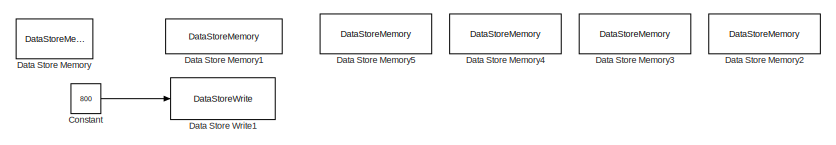
[diagram: root canvas - part 1/3, top center region]
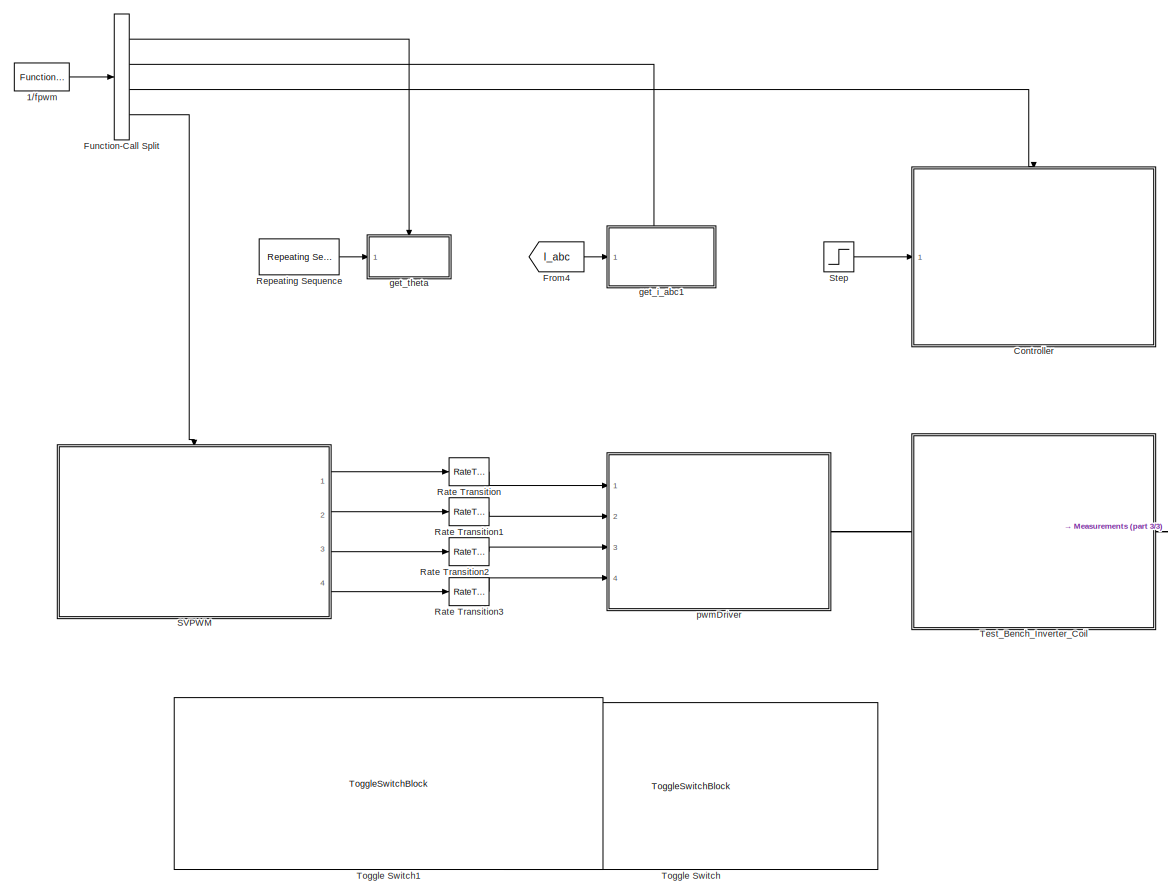
[diagram: root canvas - part 2/3, center side, full height]
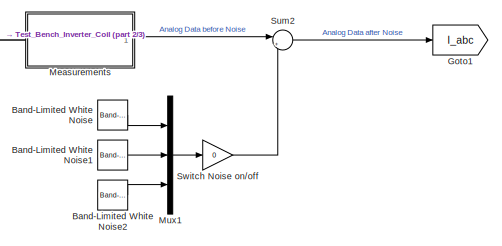
[diagram: root canvas - part 3/3, bottom right region]
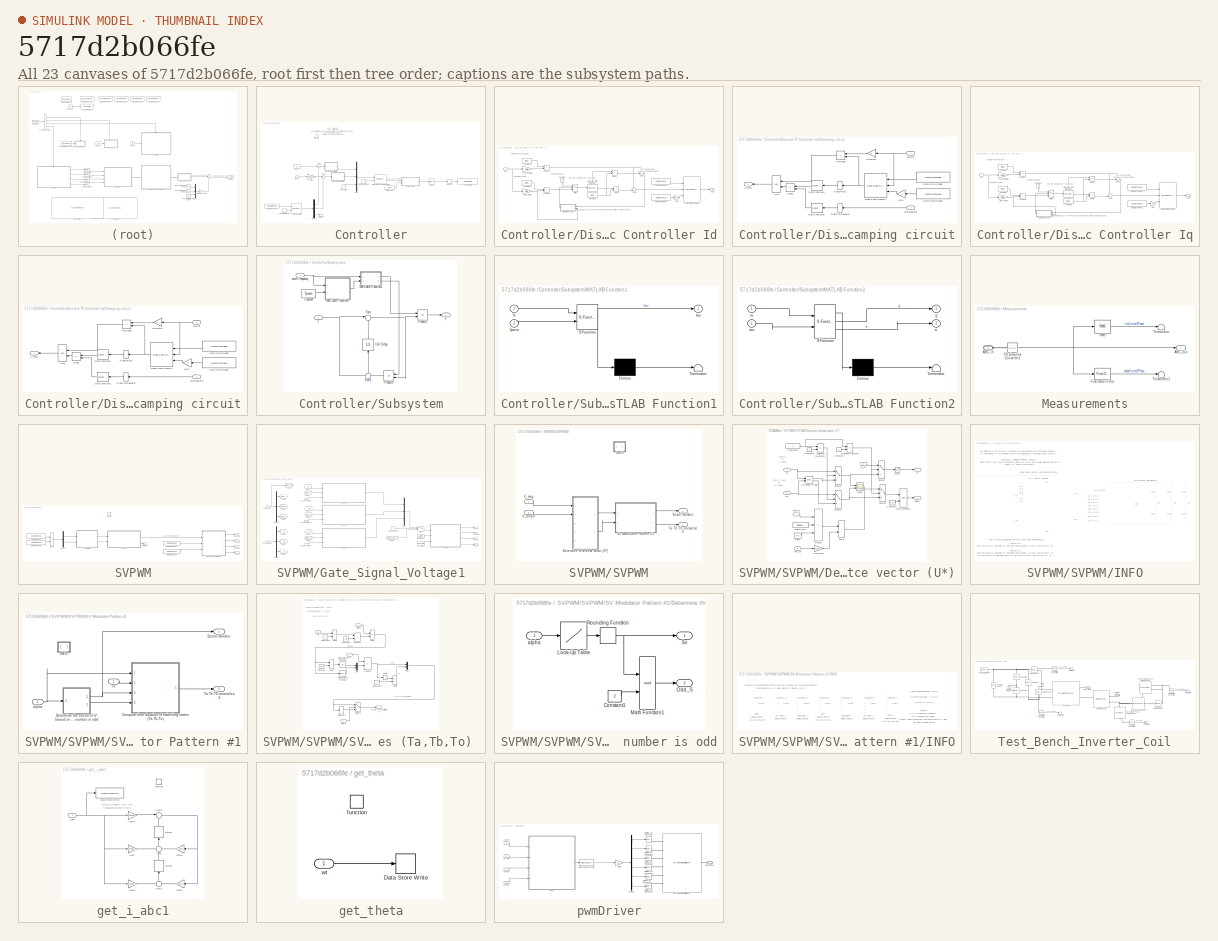
[diagram: thumbnail index - all 23 canvases of the model, root first then tree order]
MODEL slx_5717d2b066fe
KIND model
CONFIG AbsTol = auto
CONFIG EnableMultiTasking = off
CONFIG FixedStep = 1e-10
CONFIG InitFcn = clear;\n\ndead_time= 1e-6;\nT_sample = 1e-7;\nfpwm= 8e3;\nfel=200;\n\nU_dc=800;\nIq_ref=200;\n\n%**** Controller ****\nL_coil = 70e-6;\nR_coil = 1.74e-3;\nPGain = L_coil*0.1*2*pi;\nIGain = R_coil*0.1*2*pi;\n\n%**** Deadtime Correction ****\nRds_on_module = 0.0015; % Ohm\n\n%**** Filter ****\nFilterQuality = 0.7071
CONFIG MaxStep = 1e-5
CONFIG MinStep = auto
CONFIG RelTol = 1e-3
CONFIG SampleTimeConstraint = Unconstrained
CONFIG SolverName = VariableStepAuto
CONFIG StartTime = 0.0
CONFIG StopTime = 0.5
BLOCK [Reference] 1//fpwm  REF=simulink/Ports &
Subsystems/Function-Call
Generator
  Ports = [0, 1]
  SourceBlock = simulink/Ports &\nSubsystems/Function-Call\nGenerator
  SourceProductBaseCode = SL
  SourceType = Function-Call Generator
BLOCK [Reference] Band-Limited White Noise  REF=simulink/Sources/Band-Limited
White Noise
  Ports = [0, 1]
  SourceBlock = simulink/Sources/Band-Limited\nWhite Noise
  SourceProductBaseCode = SL
  SourceType = Band-Limited White Noise.
BLOCK [Reference] Band-Limited White Noise1  REF=simulink/Sources/Band-Limited
White Noise
  Ports = [0, 1]
  SourceBlock = simulink/Sources/Band-Limited\nWhite Noise
  SourceProductBaseCode = SL
  SourceType = Band-Limited White Noise.
BLOCK [Reference] Band-Limited White Noise2  REF=simulink/Sources/Band-Limited
White Noise
  Ports = [0, 1]
  SourceBlock = simulink/Sources/Band-Limited\nWhite Noise
  SourceProductBaseCode = SL
  SourceType = Band-Limited White Noise.
BLOCK [Constant] Constant
  Value = 800
BLOCK [SubSystem] Controller
  Ports = [1, 0, 0, 1]
  RequestExecContextInheritance = off
  TreatAsAtomicUnit = on
BLOCK [Constant] Controller/Constant2
  Value = 0
BLOCK [DataStoreRead] Controller/Data Store Read1
  DataStoreName = theta
  IndexOptions = Index vector (dialog)
  Indices = 1
  OutputSizes = 1
  Ports = [0, 1]
BLOCK [DataStoreRead] Controller/Data Store Read3
  DataStoreName = I_abc_sampled
  IndexOptions = Index vector (dialog)
  Indices = 1
  OutputSizes = 1
  Ports = [0, 1]
BLOCK [DataStoreRead] Controller/Data Store Read4
  DataStoreName = theta
  IndexOptions = Index vector (dialog)
  Indices = 1
  OutputSizes = 1
  Ports = [0, 1]
BLOCK [DataStoreWrite] Controller/Data Store Write
  DataStoreName = V_alpha_beta
  IndexOptions = Index vector (dialog)
  Indices = 1
  OutputSizes = 1
  Ports = [1]
BLOCK [Demux] Controller/Demux
  Outputs = 3
  Ports = [1, 3]
BLOCK [SubSystem] Controller/Discrete PI Controller Id
  Ports = [1, 1]
  RequestExecContextInheritance = off
BLOCK [SubSystem] Controller/Discrete PI Controller Id/Clamping circuit
  Ports = [2, 1]
  RequestExecContextInheritance = off
BLOCK [Logic] Controller/Discrete PI Controller Id/Clamping circuit/AND
  DisableCoverage = on
  Ports = [2, 1]
BLOCK [Outport] Controller/Discrete PI Controller Id/Clamping circuit/Clamp
  DisableCoverage = on
  VectorParamsAs1DForOutWhenUnconnected = off
BLOCK [DataStoreRead] Controller/Discrete PI Controller Id/Clamping circuit/Data Store Read1
  DataStoreName = dc_voltage_sampled
  IndexOptions = Index vector (dialog)
  Indices = 1
  NameLocation = top
  OutputSizes = 1
  Ports = [0, 1]
BLOCK [DataStoreRead] Controller/Discrete PI Controller Id/Clamping circuit/Data Store Read5
  DataStoreName = dc_voltage_sampled
  IndexOptions = Index vector (dialog)
  Indices = 1
  NameLocation = top
  OutputSizes = 1
  Ports = [0, 1]
BLOCK [DataTypeConversion] Controller/Discrete PI Controller Id/Clamping circuit/DataTypeConv1
  DisableCoverage = on
  LockScale = on
  OutDataTypeStr = int8
BLOCK [DataTypeConversion] Controller/Discrete PI Controller Id/Clamping circuit/DataTypeConv2
  DisableCoverage = on
  OutDataTypeStr = int8
  RndMeth = Floor
  SaturateOnIntegerOverflow = off
BLOCK [Reference] Controller/Discrete PI Controller Id/Clamping circuit/Dead Zone Dynamic  REF=simulink/Discontinuities/Dead Zone
Dynamic
  NameLocation = top
  Ports = [3, 1]
  SourceBlock = simulink/Discontinuities/Dead Zone\nDynamic
  SourceProductBaseCode = SL
  SourceType = Dead Zone Dynamic
BLOCK [RelationalOperator] Controller/Discrete PI Controller Id/Clamping circuit/Equal
  DisableCoverage = on
  Operator = ==
  Ports = [2, 1]
BLOCK [Gain] Controller/Discrete PI Controller Id/Clamping circuit/Gain
  Gain = -1
  NameLocation = top
BLOCK [RelationalOperator] Controller/Discrete PI Controller Id/Clamping circuit/NotEqual
  DisableCoverage = on
  Operator = ~=
  Ports = [2, 1]
BLOCK [Signum] Controller/Discrete PI Controller Id/Clamping circuit/SignDeltaU
  DisableCoverage = on
BLOCK [Signum] Controller/Discrete PI Controller Id/Clamping circuit/SignPreIntegrator
  DisableCoverage = on
BLOCK [Gain] Controller/Discrete PI Controller Id/Clamping circuit/ZeroGain
  DisableCoverage = on
  Gain = 0
  OutDataTypeStr = Inherit: Same as input
  ParamDataTypeStr = Inherit: Same as input
  SaturateOnIntegerOverflow = on
BLOCK [Inport] Controller/Discrete PI Controller Id/Clamping circuit/preIntegrator
  DisableCoverage = on
  Port = 2
BLOCK [Inport] Controller/Discrete PI Controller Id/Clamping circuit/preSat
  DisableCoverage = on
BLOCK [Constant] Controller/Discrete PI Controller Id/Constant
  DisableCoverage = on
  NameLocation = right
  OutDataTypeStr = Inherit: Inherit via back propagation
  PreserveConstantTs = on
  Value = 0
BLOCK [Constant] Controller/Discrete PI Controller Id/Constant1
  Value = fpwm
BLOCK [Constant] Controller/Discrete PI Controller Id/Constant2
  Value = fpwm
BLOCK [Constant] Controller/Discrete PI Controller Id/Constant3
  Value = fpwm
BLOCK [DataStoreRead] Controller/Discrete PI Controller Id/Data Store Read1
  DataStoreName = dc_voltage_sampled
  IndexOptions = Index vector (dialog)
  Indices = 1
  OutputSizes = 1
  Ports = [0, 1]
BLOCK [DataStoreRead] Controller/Discrete PI Controller Id/Data Store Read5
  DataStoreName = dc_voltage_sampled
  IndexOptions = Index vector (dialog)
  Indices = 1
  OutputSizes = 1
  Ports = [0, 1]
BLOCK [DiscreteIntegrator] Controller/Discrete PI Controller Id/Discrete-Time Integrator
  ICPrevOutput = DiscIntNeverNeededParam
  ICPrevScaledInput = DiscIntNeverNeededParam
  InitialConditionSetting = Auto
  IntegratorMethod = Accumulation: Trapezoidal
  Ports = [1, 1, 0, 0, 1]
  SampleTime = -1
  ShowStatePort = on
BLOCK [Product] Controller/Discrete PI Controller Id/Divide
  Inputs = */
  Ports = [2, 1]
BLOCK [Product] Controller/Discrete PI Controller Id/Divide1
  Inputs = */
  Ports = [2, 1]
BLOCK [Gain] Controller/Discrete PI Controller Id/Gain
  Gain = -1
BLOCK [Inport] Controller/Discrete PI Controller Id/In1
BLOCK [Gain] Controller/Discrete PI Controller Id/Integral Gain
  Gain = IGain
BLOCK [Outport] Controller/Discrete PI Controller Id/Out1
  VectorParamsAs1DForOutWhenUnconnected = off
BLOCK [Product] Controller/Discrete PI Controller Id/Product
  Ports = [2, 1]
BLOCK [Product] Controller/Discrete PI Controller Id/Product1
  Ports = [2, 1]
BLOCK [Gain] Controller/Discrete PI Controller Id/Proportial Gain
  Gain = PGain
BLOCK [Reference] Controller/Discrete PI Controller Id/Saturation Dynamic  REF=simulink/Discontinuities/Saturation
Dynamic
  Ports = [3, 1]
  SourceBlock = simulink/Discontinuities/Saturation\nDynamic
  SourceProductBaseCode = SL
  SourceType = Saturation Dynamic
BLOCK [Sum] Controller/Discrete PI Controller Id/Sum1
  Inputs = ++|
  Ports = [2, 1]
BLOCK [Sum] Controller/Discrete PI Controller Id/Sum3
  Inputs = ++|
  Ports = [2, 1]
BLOCK [Switch] Controller/Discrete PI Controller Id/Switch
  Criteria = u2 > Threshold
  SaturateOnIntegerOverflow = off
BLOCK [SubSystem] Controller/Discrete PI Controller Iq
  Ports = [1, 1]
  RequestExecContextInheritance = off
BLOCK [SubSystem] Controller/Discrete PI Controller Iq/Clamping circuit
  Ports = [2, 1]
  RequestExecContextInheritance = off
BLOCK [Logic] Controller/Discrete PI Controller Iq/Clamping circuit/AND
  DisableCoverage = on
  Ports = [2, 1]
BLOCK [Outport] Controller/Discrete PI Controller Iq/Clamping circuit/Clamp
  DisableCoverage = on
  VectorParamsAs1DForOutWhenUnconnected = off
BLOCK [DataStoreRead] Controller/Discrete PI Controller Iq/Clamping circuit/Data Store Read1
  DataStoreName = dc_voltage_sampled
  IndexOptions = Index vector (dialog)
  Indices = 1
  NameLocation = top
  OutputSizes = 1
  Ports = [0, 1]
BLOCK [DataStoreRead] Controller/Discrete PI Controller Iq/Clamping circuit/Data Store Read5
  DataStoreName = dc_voltage_sampled
  IndexOptions = Index vector (dialog)
  Indices = 1
  NameLocation = top
  OutputSizes = 1
  Ports = [0, 1]
BLOCK [DataTypeConversion] Controller/Discrete PI Controller Iq/Clamping circuit/DataTypeConv1
  DisableCoverage = on
  LockScale = on
  OutDataTypeStr = int8
BLOCK [DataTypeConversion] Controller/Discrete PI Controller Iq/Clamping circuit/DataTypeConv2
  DisableCoverage = on
  OutDataTypeStr = int8
  RndMeth = Floor
  SaturateOnIntegerOverflow = off
BLOCK [Reference] Controller/Discrete PI Controller Iq/Clamping circuit/Dead Zone Dynamic  REF=simulink/Discontinuities/Dead Zone
Dynamic
  NameLocation = top
  Ports = [3, 1]
  SourceBlock = simulink/Discontinuities/Dead Zone\nDynamic
  SourceProductBaseCode = SL
  SourceType = Dead Zone Dynamic
BLOCK [RelationalOperator] Controller/Discrete PI Controller Iq/Clamping circuit/Equal
  DisableCoverage = on
  Operator = ==
  Ports = [2, 1]
BLOCK [Gain] Controller/Discrete PI Controller Iq/Clamping circuit/Gain
  Gain = -1
  NameLocation = top
BLOCK [RelationalOperator] Controller/Discrete PI Controller Iq/Clamping circuit/NotEqual
  DisableCoverage = on
  Operator = ~=
  Ports = [2, 1]
BLOCK [Signum] Controller/Discrete PI Controller Iq/Clamping circuit/SignDeltaU
  DisableCoverage = on
BLOCK [Signum] Controller/Discrete PI Controller Iq/Clamping circuit/SignPreIntegrator
  DisableCoverage = on
BLOCK [Gain] Controller/Discrete PI Controller Iq/Clamping circuit/ZeroGain
  DisableCoverage = on
  Gain = 0
  OutDataTypeStr = Inherit: Same as input
  ParamDataTypeStr = Inherit: Same as input
  SaturateOnIntegerOverflow = on
BLOCK [Inport] Controller/Discrete PI Controller Iq/Clamping circuit/preIntegrator
  DisableCoverage = on
  Port = 2
BLOCK [Inport] Controller/Discrete PI Controller Iq/Clamping circuit/preSat
  DisableCoverage = on
BLOCK [Constant] Controller/Discrete PI Controller Iq/Constant
  DisableCoverage = on
  NameLocation = right
  OutDataTypeStr = Inherit: Inherit via back propagation
  PreserveConstantTs = on
  Value = 0
BLOCK [Constant] Controller/Discrete PI Controller Iq/Constant1
  Value = fpwm
BLOCK [Constant] Controller/Discrete PI Controller Iq/Constant2
  Value = fpwm
BLOCK [Constant] Controller/Discrete PI Controller Iq/Constant3
  Value = fpwm
BLOCK [DataStoreRead] Controller/Discrete PI Controller Iq/Data Store Read1
  DataStoreName = dc_voltage_sampled
  IndexOptions = Index vector (dialog)
  Indices = 1
  OutputSizes = 1
  Ports = [0, 1]
BLOCK [DataStoreRead] Controller/Discrete PI Controller Iq/Data Store Read5
  DataStoreName = dc_voltage_sampled
  IndexOptions = Index vector (dialog)
  Indices = 1
  OutputSizes = 1
  Ports = [0, 1]
BLOCK [DiscreteIntegrator] Controller/Discrete PI Controller Iq/Discrete-Time Integrator
  ICPrevOutput = DiscIntNeverNeededParam
  ICPrevScaledInput = DiscIntNeverNeededParam
  InitialConditionSetting = Auto
  IntegratorMethod = Accumulation: Trapezoidal
  Ports = [1, 1, 0, 0, 1]
  SampleTime = -1
  ShowStatePort = on
BLOCK [Product] Controller/Discrete PI Controller Iq/Divide
  Inputs = */
  Ports = [2, 1]
BLOCK [Product] Controller/Discrete PI Controller Iq/Divide1
  Inputs = */
  Ports = [2, 1]
BLOCK [Gain] Controller/Discrete PI Controller Iq/Gain
  Gain = -1
BLOCK [Inport] Controller/Discrete PI Controller Iq/In1
BLOCK [Gain] Controller/Discrete PI Controller Iq/Integral Gain
  Gain = IGain
BLOCK [Outport] Controller/Discrete PI Controller Iq/Out1
  VectorParamsAs1DForOutWhenUnconnected = off
BLOCK [Product] Controller/Discrete PI Controller Iq/Product
  Ports = [2, 1]
BLOCK [Product] Controller/Discrete PI Controller Iq/Product1
  Ports = [2, 1]
BLOCK [Gain] Controller/Discrete PI Controller Iq/Proportial Gain
  Gain = PGain
BLOCK [Reference] Controller/Discrete PI Controller Iq/Saturation Dynamic  REF=simulink/Discontinuities/Saturation
Dynamic
  Ports = [3, 1]
  SourceBlock = simulink/Discontinuities/Saturation\nDynamic
  SourceProductBaseCode = SL
  SourceType = Saturation Dynamic
BLOCK [Sum] Controller/Discrete PI Controller Iq/Sum1
  Inputs = ++|
  Ports = [2, 1]
BLOCK [Sum] Controller/Discrete PI Controller Iq/Sum3
  Inputs = ++|
  Ports = [2, 1]
BLOCK [Switch] Controller/Discrete PI Controller Iq/Switch
  Criteria = u2 > Threshold
  SaturateOnIntegerOverflow = off
BLOCK [Constant] Controller/Id_ref
  Value = 0
BLOCK [Inport] Controller/Iq_ref
BLOCK [Memory] Controller/Memory1
  InheritSampleTime = on
  LinearizeAsDelay = on
BLOCK [Mux] Controller/Mux
  DisplayOption = bar
  Inputs = 3
  Ports = [3, 1]
BLOCK [Reference] Controller/Park Transform  REF=eeTransforms/Park Transform
  Ports = [2, 1]
  SourceBlock = eeTransforms/Park Transform
  SourceProductBaseCode = PS
  SourceType = Park Transform
BLOCK [Reference] Controller/Park to Clarke Angle Transform  REF=eeTransforms/Park to Clarke
Angle Transform
  Ports = [2, 1]
  SourceBlock = eeTransforms/Park to Clarke\nAngle Transform
  SourceProductBaseCode = PS
  SourceType = Park to Clarke Angle Transform
BLOCK [Gain] Controller/RMS
  Gain = sqrt(2)
BLOCK [Selector] Controller/Selector
  IndexOptions = Index vector (dialog)
  Indices = [1 2]
  InputPortWidth = 3
  OutputSizes = 1
  Ports = [1, 1]
BLOCK [SubSystem] Controller/Subsystem
  Ports = [2, 1]
  RequestExecContextInheritance = off
BLOCK [Constant] Controller/Subsystem/Constant
  Value = fpwm
BLOCK [SubSystem] Controller/Subsystem/MATLAB Function1
  ErrorFcn = Stateflow.Translate.translate
  PermitHierarchicalResolution = ExplicitOnly
  Ports = [2, 1]
  RequestExecContextInheritance = off
  SFBlockType = MATLAB Function
  TreatAsAtomicUnit = on
BLOCK [Demux] Controller/Subsystem/MATLAB Function1/ Demux 
  Outputs = 1
  Ports = [1, 1]
BLOCK [S-Function] Controller/Subsystem/MATLAB Function1/ SFunction 
  EnableBusSupport = on
  FunctionName = sf_sfun
  PortCounts = [2 2]
  Ports = [2, 2]
  SFcnIsStateOwnerBlock = off
  SFunctionDeploymentMode = off
  Tag = Stateflow S-Function 2
BLOCK [Terminator] Controller/Subsystem/MATLAB Function1/ Terminator 
BLOCK [Inport] Controller/Subsystem/MATLAB Function1/fc
BLOCK [Inport] Controller/Subsystem/MATLAB Function1/fpwm
  Port = 2
BLOCK [Outport] Controller/Subsystem/MATLAB Function1/tau
  VectorParamsAs1DForOutWhenUnconnected = off
BLOCK [SubSystem] Controller/Subsystem/MATLAB Function2
  ErrorFcn = Stateflow.Translate.translate
  PermitHierarchicalResolution = ExplicitOnly
  Ports = [2, 2]
  RequestExecContextInheritance = off
  SFBlockType = MATLAB Function
  TreatAsAtomicUnit = on
BLOCK [Demux] Controller/Subsystem/MATLAB Function2/ Demux 
  Outputs = 1
  Ports = [1, 1]
BLOCK [S-Function] Controller/Subsystem/MATLAB Function2/ SFunction 
  EnableBusSupport = on
  FunctionName = sf_sfun
  PortCounts = [2 3]
  Ports = [2, 3]
  SFcnIsStateOwnerBlock = off
  SFunctionDeploymentMode = off
  Tag = Stateflow S-Function 1
BLOCK [Terminator] Controller/Subsystem/MATLAB Function2/ Terminator 
BLOCK [Outport] Controller/Subsystem/MATLAB Function2/a
  Port = 2
BLOCK [Outport] Controller/Subsystem/MATLAB Function2/g
BLOCK [Inport] Controller/Subsystem/MATLAB Function2/tau
  Port = 2
BLOCK [Inport] Controller/Subsystem/MATLAB Function2/w
BLOCK [Product] Controller/Subsystem/Product1
  Ports = [2, 1]
BLOCK [Product] Controller/Subsystem/Product4
  Ports = [2, 1]
BLOCK [Sum] Controller/Subsystem/Sum
  Inputs = |++
  Ports = [2, 1]
BLOCK [Sum] Controller/Subsystem/Sum3
  Inputs = +|+
  NameLocation = right
  Ports = [2, 1]
BLOCK [UnitDelay] Controller/Subsystem/Unit Delay
  HasFrameUpgradeWarning = on
  NameLocation = right
  SampleTime = -1
BLOCK [Inport] Controller/Subsystem/cutoff frequency
  Port = 2
BLOCK [Inport] Controller/Subsystem/u
BLOCK [Outport] Controller/Subsystem/y
  VectorParamsAs1DForOutWhenUnconnected = off
BLOCK [Sum] Controller/Sum1
  Inputs = |+-
  Ports = [2, 1]
BLOCK [Sum] Controller/Sum2
  Inputs = |+-
  Ports = [2, 1]
BLOCK [Terminator] Controller/Terminator
BLOCK [Constant] Controller/cutoff_frequency
  Value = 2000
BLOCK [TriggerPort] Controller/function
  NameLocation = top
  Ports = []
  StatesWhenEnabling = held
  TriggerType = function-call
  VariantControl = Variant
BLOCK [DataStoreMemory] Data Store Memory
  DataStoreName = theta
  ReadBeforeWriteMsg = warning
  ShowAdditionalParam = off
  WriteAfterReadMsg = warning
  WriteAfterWriteMsg = warning
BLOCK [DataStoreMemory] Data Store Memory1
  DataStoreName = V_alpha_beta
  InitialValue = [0 0]
  ReadBeforeWriteMsg = warning
  ShowAdditionalParam = off
  WriteAfterReadMsg = warning
  WriteAfterWriteMsg = warning
BLOCK [DataStoreMemory] Data Store Memory2
  DataStoreName = I_abc_sampled
  InitialValue = [0 0 0]
  ReadBeforeWriteMsg = warning
  ShowAdditionalParam = off
  WriteAfterReadMsg = warning
  WriteAfterWriteMsg = warning
BLOCK [DataStoreMemory] Data Store Memory3
  DataStoreName = I_abc_control
  InitialValue = [0 0 0]
  ReadBeforeWriteMsg = warning
  ShowAdditionalParam = off
  WriteAfterReadMsg = warning
  WriteAfterWriteMsg = warning
BLOCK [DataStoreMemory] Data Store Memory4
  DataStoreName = dc_voltage_sampled
  InitialValue = U_dc
  ReadBeforeWriteMsg = warning
  ShowAdditionalParam = off
  WriteAfterReadMsg = warning
  WriteAfterWriteMsg = warning
BLOCK [DataStoreMemory] Data Store Memory5
  DataStoreName = FilterCoefficients
  InitialValue = [1 0 0 0 0]
  ReadBeforeWriteMsg = warning
  ShowAdditionalParam = off
  WriteAfterReadMsg = warning
  WriteAfterWriteMsg = warning
BLOCK [DataStoreWrite] Data Store Write1
  DataStoreName = dc_voltage_sampled
  IndexOptions = Index vector (dialog)
  Indices = 1
  OutputSizes = 1
  Ports = [1]
BLOCK [From] From4
  GotoTag = I_abc
BLOCK [FunctionCallSplit] Function-Call Split
  IconShape = distinctive
  NumOutputPorts = 4
  OutputPortLayout = default
  Ports = [1, 4]
BLOCK [Goto] Goto1
  GotoTag = I_abc
BLOCK [SubSystem] Measurements
  Ports = [0, 1, 0, 0, 0, 1]
  RequestExecContextInheritance = off
BLOCK [PMIOPort] Measurements/ABC_in
  Side = Left
BLOCK [Outport] Measurements/ABC_out
  VectorParamsAs1DForOutWhenUnconnected = off
BLOCK [Reference] Measurements/First-Order Filter  REF=spsFirstOrderFilterLib/First-Order
Filter
  Ports = [1, 1]
  SourceBlock = spsFirstOrderFilterLib/First-Order\nFilter
  SourceProductBaseCode = PS
  SourceType = First-Order Filter
BLOCK [Reference] Measurements/PS-Simulink Converter1  REF=nesl_utility/PS-Simulink
Converter
  Ports = [0, 1, 0, 0, 0, 1]
  SourceBlock = nesl_utility/PS-Simulink\nConverter
  SourceProductBaseCode = SS,PW,VE
  SourceType = PS-Simulink\nConverter
BLOCK [Reference] Measurements/RMS  REF=spsRMSLib/RMS
  Ports = [1, 1]
  SourceBlock = spsRMSLib/RMS
  SourceProductBaseCode = PS
  SourceType = RMS
BLOCK [Terminator] Measurements/Terminator
BLOCK [Terminator] Measurements/Terminator1
BLOCK [Mux] Mux1
  DisplayOption = bar
  Inputs = 3
  Ports = [3, 1]
BLOCK [RateTransition] Rate Transition
BLOCK [RateTransition] Rate Transition1
BLOCK [RateTransition] Rate Transition2
BLOCK [RateTransition] Rate Transition3
BLOCK [Reference] Repeating Sequence  REF=simulink/Sources/Repeating
Sequence
  Ports = [0, 1]
  SourceBlock = simulink/Sources/Repeating\nSequence
  SourceProductBaseCode = SL
  SourceType = Repeating table
BLOCK [SubSystem] SVPWM
  Ports = [0, 4, 0, 1]
  RequestExecContextInheritance = off
BLOCK [DataStoreRead] SVPWM/Data Store Read
  DataStoreName = V_alpha_beta
  IndexOptions = Index vector (dialog)
  Indices = 1
  OutputSizes = 1
  Ports = [0, 1]
BLOCK [DataStoreRead] SVPWM/Data Store Read1
  DataStoreName = I_abc_sampled
  IndexOptions = Index vector (dialog)
  Indices = 1
  OutputSizes = 1
  Ports = [0, 1]
BLOCK [DataStoreRead] SVPWM/Data Store Read2
  DataStoreName = dc_voltage_sampled
  IndexOptions = Index vector (dialog)
  Indices = 1
  OutputSizes = 1
  Ports = [0, 1]
BLOCK [DataStoreRead] SVPWM/Data Store Read5
  DataStoreName = dc_voltage_sampled
  IndexOptions = Index vector (dialog)
  Indices = 1
  OutputSizes = 1
  Ports = [0, 1]
BLOCK [Demux] SVPWM/Demux
  Outputs = 2
  Ports = [1, 2]
BLOCK [Product] SVPWM/Divide
  Inputs = */
  Ports = [2, 1]
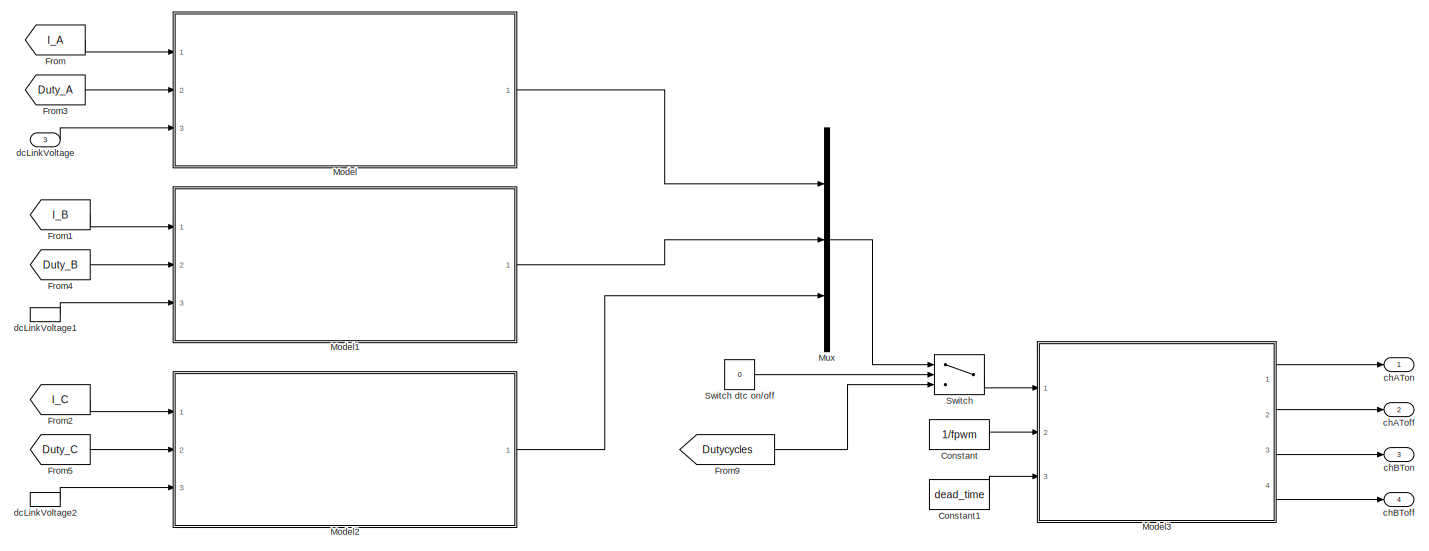
[diagram: SVPWM/Gate_Signal_Voltage1 - part 1/2, most of the canvas]
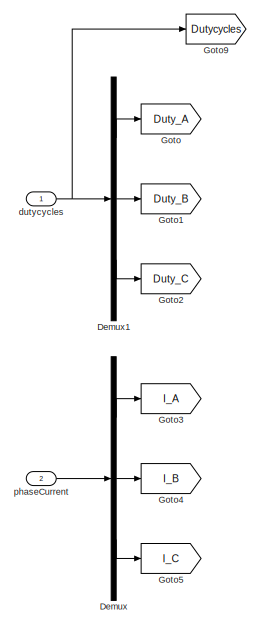
[diagram: SVPWM/Gate_Signal_Voltage1 - part 2/2, left side, full height]
BLOCK [SubSystem] SVPWM/Gate_Signal_Voltage1
  Ports = [3, 4]
  RequestExecContextInheritance = off
BLOCK [Constant] SVPWM/Gate_Signal_Voltage1/Constant
  Value = 1/fpwm
BLOCK [Constant] SVPWM/Gate_Signal_Voltage1/Constant1
  Value = dead_time
BLOCK [Demux] SVPWM/Gate_Signal_Voltage1/Demux
  Outputs = 3
  Ports = [1, 3]
BLOCK [Demux] SVPWM/Gate_Signal_Voltage1/Demux1
  Outputs = 3
  Ports = [1, 3]
BLOCK [From] SVPWM/Gate_Signal_Voltage1/From
  GotoTag = I_A
BLOCK [From] SVPWM/Gate_Signal_Voltage1/From1
  GotoTag = I_B
BLOCK [From] SVPWM/Gate_Signal_Voltage1/From2
  GotoTag = I_C
BLOCK [From] SVPWM/Gate_Signal_Voltage1/From3
  GotoTag = Duty_A
BLOCK [From] SVPWM/Gate_Signal_Voltage1/From4
  GotoTag = Duty_B
BLOCK [From] SVPWM/Gate_Signal_Voltage1/From5
  GotoTag = Duty_C
BLOCK [From] SVPWM/Gate_Signal_Voltage1/From9
  GotoTag = Dutycycles
BLOCK [Goto] SVPWM/Gate_Signal_Voltage1/Goto
  GotoTag = Duty_A
BLOCK [Goto] SVPWM/Gate_Signal_Voltage1/Goto1
  GotoTag = Duty_B
BLOCK [Goto] SVPWM/Gate_Signal_Voltage1/Goto2
  GotoTag = Duty_C
BLOCK [Goto] SVPWM/Gate_Signal_Voltage1/Goto3
  GotoTag = I_A
BLOCK [Goto] SVPWM/Gate_Signal_Voltage1/Goto4
  GotoTag = I_B
BLOCK [Goto] SVPWM/Gate_Signal_Voltage1/Goto5
  GotoTag = I_C
BLOCK [Goto] SVPWM/Gate_Signal_Voltage1/Goto9
  GotoTag = Dutycycles
BLOCK [ModelReference] SVPWM/Gate_Signal_Voltage1/Model
  ModelNameDialog = deadtime_compensation.slx
  ModelReferenceVersion = 10.1
  Ports = [3, 1]
BLOCK [ModelReference] SVPWM/Gate_Signal_Voltage1/Model1
  ModelNameDialog = deadtime_compensation.slx
  ModelReferenceVersion = 10.1
  Ports = [3, 1]
BLOCK [ModelReference] SVPWM/Gate_Signal_Voltage1/Model2
  ModelNameDialog = deadtime_compensation.slx
  ModelReferenceVersion = 10.1
  Ports = [3, 1]
BLOCK [ModelReference] SVPWM/Gate_Signal_Voltage1/Model3
  ModelNameDialog = asymmetricPwm.slx
  ModelReferenceVersion = 1.3
  Ports = [3, 4]
BLOCK [Mux] SVPWM/Gate_Signal_Voltage1/Mux
  DisplayOption = bar
  Inputs = 3
  Ports = [3, 1]
BLOCK [Switch] SVPWM/Gate_Signal_Voltage1/Switch
  Criteria = u2 > Threshold
  InputSameDT = off
  SaturateOnIntegerOverflow = off
BLOCK [Constant] SVPWM/Gate_Signal_Voltage1/Switch dtc on//off
  Value = 0
BLOCK [Outport] SVPWM/Gate_Signal_Voltage1/chAToff
  Port = 2
BLOCK [Outport] SVPWM/Gate_Signal_Voltage1/chATon
BLOCK [Outport] SVPWM/Gate_Signal_Voltage1/chBToff
  Port = 4
BLOCK [Outport] SVPWM/Gate_Signal_Voltage1/chBTon
  Port = 3
BLOCK [Inport] SVPWM/Gate_Signal_Voltage1/dcLinkVoltage
  Port = 3
BLOCK [InportShadow] SVPWM/Gate_Signal_Voltage1/dcLinkVoltage1
  Port = 3
BLOCK [InportShadow] SVPWM/Gate_Signal_Voltage1/dcLinkVoltage2
  Port = 3
BLOCK [Inport] SVPWM/Gate_Signal_Voltage1/dutycycles
BLOCK [Inport] SVPWM/Gate_Signal_Voltage1/phaseCurrent
  Port = 2
BLOCK [ModelReference] SVPWM/Model
  ModelNameDialog = sort_dutycycles.slx
  ModelReferenceVersion = 1.5
  Ports = [2, 2]
BLOCK [SubSystem] SVPWM/SVPWM
  Ports = [2, 2]
  RequestExecContextInheritance = off
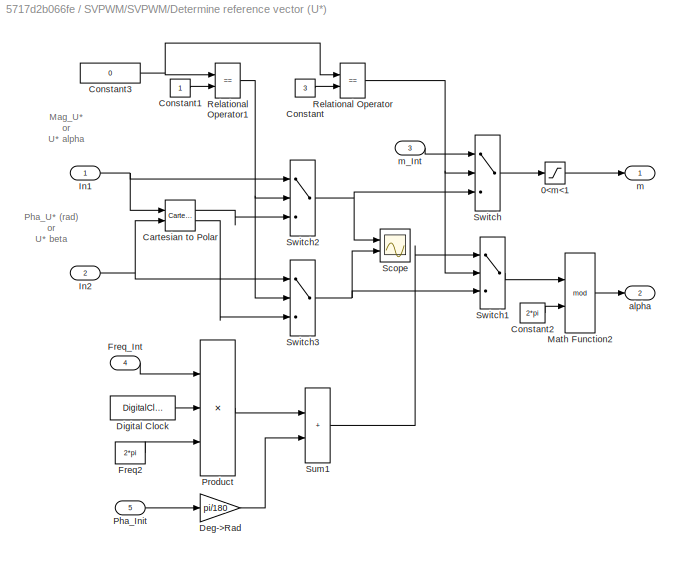
BLOCK [SubSystem] SVPWM/SVPWM/Determine reference vector (U*)
  Ports = [5, 2]
  RequestExecContextInheritance = off
BLOCK [Saturate] SVPWM/SVPWM/Determine reference vector (U*)/0<m<1 
  LowerLimit = 0
  UpperLimit = 1
BLOCK [Reference] SVPWM/SVPWM/Determine reference vector (U*)/Cartesian to Polar  REF=simulink_extras/Transformations/Cartesian to
Polar
  Ports = [2, 2]
  SourceBlock = simulink_extras/Transformations/Cartesian to\nPolar
  SourceProductBaseCode = SL
  SourceType = Cart2Polar
BLOCK [Constant] SVPWM/SVPWM/Determine reference vector (U*)/Constant
  Value = 3
BLOCK [Constant] SVPWM/SVPWM/Determine reference vector (U*)/Constant1
BLOCK [Constant] SVPWM/SVPWM/Determine reference vector (U*)/Constant2
  NameLocation = top
  Value = 2*pi
BLOCK [Constant] SVPWM/SVPWM/Determine reference vector (U*)/Constant3
  Value = 0
BLOCK [Gain] SVPWM/SVPWM/Determine reference vector (U*)/Deg->Rad
  Gain = pi/180
  OutDataTypeStr = Inherit: Same as input
  ParamDataTypeStr = Inherit: Same as input
  SaturateOnIntegerOverflow = on
BLOCK [DigitalClock] SVPWM/SVPWM/Determine reference vector (U*)/Digital Clock
  SampleTime = -1
BLOCK [Constant] SVPWM/SVPWM/Determine reference vector (U*)/Freq2
  Value = 2*pi
BLOCK [Inport] SVPWM/SVPWM/Determine reference vector (U*)/Freq_Int
  Port = 4
BLOCK [Inport] SVPWM/SVPWM/Determine reference vector (U*)/In1
BLOCK [Inport] SVPWM/SVPWM/Determine reference vector (U*)/In2
  Port = 2
BLOCK [Math] SVPWM/SVPWM/Determine reference vector (U*)/Math Function2
  Operator = mod
  Ports = [2, 1]
  SignedPower = on
BLOCK [Inport] SVPWM/SVPWM/Determine reference vector (U*)/Pha_Init
  Port = 5
BLOCK [Product] SVPWM/SVPWM/Determine reference vector (U*)/Product
  InputSameDT = on
  Inputs = ***
  OutDataTypeStr = Inherit: Same as first input
  Ports = [3, 1]
  SaturateOnIntegerOverflow = on
BLOCK [RelationalOperator] SVPWM/SVPWM/Determine reference vector (U*)/Relational Operator
  InputSameDT = off
  Operator = ==
  Ports = [2, 1]
BLOCK [RelationalOperator] SVPWM/SVPWM/Determine reference vector (U*)/Relational Operator1
  InputSameDT = off
  Operator = ==
  Ports = [2, 1]
BLOCK [Scope] SVPWM/SVPWM/Determine reference vector (U*)/Scope
  Floating = off
  NumInputPorts = 2
  Ports = [2]
  ScopeSpecificationString = Simulink.scopes.TimeScopeBlockCfg('CurrentConfiguration', extmgr.ConfigurationSet(extmgr.Configuration('Core','General UI',true),extmgr.Configuration('Core','Source UI',true),extmgr.Configuration('Sources','WiredSimulink',true,'DataLoggingVariableName','ScopeData9'),extmgr.Configuration('Visuals','Time Domain',true,'SerializedDisplays',{struct('MinYLimReal','-3.92609','MaxYLimReal','3.92396','YLab...<+1477ch>
BLOCK [Sum] SVPWM/SVPWM/Determine reference vector (U*)/Sum1
  IconShape = rectangular
  InputSameDT = on
  OutDataTypeStr = Inherit: Same as first input
  Ports = [2, 1]
  SaturateOnIntegerOverflow = on
BLOCK [Switch] SVPWM/SVPWM/Determine reference vector (U*)/Switch
  InputSameDT = off
  Threshold = 0.5
BLOCK [Switch] SVPWM/SVPWM/Determine reference vector (U*)/Switch1
  InputSameDT = off
  Threshold = 0.5
BLOCK [Switch] SVPWM/SVPWM/Determine reference vector (U*)/Switch2
  InputSameDT = off
  Threshold = 0.5
BLOCK [Switch] SVPWM/SVPWM/Determine reference vector (U*)/Switch3
  InputSameDT = off
  Threshold = 0.5
BLOCK [Outport] SVPWM/SVPWM/Determine reference vector (U*)/alpha
  Port = 2
  VectorParamsAs1DForOutWhenUnconnected = off
BLOCK [Outport] SVPWM/SVPWM/Determine reference vector (U*)/m
  VectorParamsAs1DForOutWhenUnconnected = off
BLOCK [Inport] SVPWM/SVPWM/Determine reference vector (U*)/m_Int
  Port = 3
BLOCK [SubSystem] SVPWM/SVPWM/INFO
  Ports = []
  RequestExecContextInheritance = off
BLOCK [SubSystem] SVPWM/SVPWM/SV Modulator Pattern #1
  Ports = [2, 2]
  RequestExecContextInheritance = off
BLOCK [SubSystem] SVPWM/SVPWM/SV Modulator Pattern #1/Compute time duration of switching states (Ta,Tb,To) 
  Ports = [4, 1]
  RequestExecContextInheritance = off
BLOCK [Constant] SVPWM/SVPWM/SV Modulator Pattern #1/Compute time duration of switching states (Ta,Tb,To) /Constant
  Value = pi/6
BLOCK [Constant] SVPWM/SVPWM/SV Modulator Pattern #1/Compute time duration of switching states (Ta,Tb,To) /Constant1
  Value = pi/3
BLOCK [Constant] SVPWM/SVPWM/SV Modulator Pattern #1/Compute time duration of switching states (Ta,Tb,To) /Constant2
BLOCK [Constant] SVPWM/SVPWM/SV Modulator Pattern #1/Compute time duration of switching states (Ta,Tb,To) /Constant8
BLOCK [Mux] SVPWM/SVPWM/SV Modulator Pattern #1/Compute time duration of switching states (Ta,Tb,To) /Mux
  DisplayOption = bar
  Inputs = 2
  Ports = [2, 1]
BLOCK [Mux] SVPWM/SVPWM/SV Modulator Pattern #1/Compute time duration of switching states (Ta,Tb,To) /Mux1
  DisplayOption = bar
  Inputs = 2
  Ports = [2, 1]
BLOCK [Inport] SVPWM/SVPWM/SV Modulator Pattern #1/Compute time duration of switching states (Ta,Tb,To) /Odd_S
  Port = 4
BLOCK [Product] SVPWM/SVPWM/SV Modulator Pattern #1/Compute time duration of switching states (Ta,Tb,To) /Product
  OutDataTypeStr = Inherit: Same as first input
  Ports = [2, 1]
  SaturateOnIntegerOverflow = on
BLOCK [Product] SVPWM/SVPWM/SV Modulator Pattern #1/Compute time duration of switching states (Ta,Tb,To) /Product1
  OutDataTypeStr = Inherit: Same as first input
  Ports = [2, 1]
  SaturateOnIntegerOverflow = on
BLOCK [Selector] SVPWM/SVPWM/SV Modulator Pattern #1/Compute time duration of switching states (Ta,Tb,To) /Selector1
  IndexOptions = Index vector (dialog)
  Indices = [2 1 3]
  InputPortWidth = 3
  OutputSizes = 1
  Ports = [1, 1]
BLOCK [Inport] SVPWM/SVPWM/SV Modulator Pattern #1/Compute time duration of switching states (Ta,Tb,To) /Sn
  Port = 3
BLOCK [Sum] SVPWM/SVPWM/SV Modulator Pattern #1/Compute time duration of switching states (Ta,Tb,To) /Sum
  IconShape = rectangular
  Ports = [2, 1]
  SaturateOnIntegerOverflow = on
BLOCK [Sum] SVPWM/SVPWM/SV Modulator Pattern #1/Compute time duration of switching states (Ta,Tb,To) /Sum1
  IconShape = rectangular
  Inputs = +-
  Ports = [2, 1]
  SaturateOnIntegerOverflow = on
BLOCK [Sum] SVPWM/SVPWM/SV Modulator Pattern #1/Compute time duration of switching states (Ta,Tb,To) /Sum2
  IconShape = rectangular
  Inputs = 1
  Ports = [1, 1]
  SaturateOnIntegerOverflow = on
BLOCK [Sum] SVPWM/SVPWM/SV Modulator Pattern #1/Compute time duration of switching states (Ta,Tb,To) /Sum3
  IconShape = rectangular
  Inputs = -+
  Ports = [2, 1]
  SaturateOnIntegerOverflow = on
BLOCK [Sum] SVPWM/SVPWM/SV Modulator Pattern #1/Compute time duration of switching states (Ta,Tb,To) /Sum4
  IconShape = rectangular
  Inputs = +-
  Ports = [2, 1]
  SaturateOnIntegerOverflow = on
BLOCK [Switch] SVPWM/SVPWM/SV Modulator Pattern #1/Compute time duration of switching states (Ta,Tb,To) /Switch1
  InputSameDT = off
  Threshold = 0.5
BLOCK [Outport] SVPWM/SVPWM/SV Modulator Pattern #1/Compute time duration of switching states (Ta,Tb,To) /Ta Tb T0 normalized
  VectorParamsAs1DForOutWhenUnconnected = off
BLOCK [Trigonometry] SVPWM/SVPWM/SV Modulator Pattern #1/Compute time duration of switching states (Ta,Tb,To) /Trigonometric Function
  Ports = [1, 1]
BLOCK [Trigonometry] SVPWM/SVPWM/SV Modulator Pattern #1/Compute time duration of switching states (Ta,Tb,To) /Trigonometric Function1
  Operator = cos
  Ports = [1, 1]
BLOCK [Inport] SVPWM/SVPWM/SV Modulator Pattern #1/Compute time duration of switching states (Ta,Tb,To) /alpha
BLOCK [Inport] SVPWM/SVPWM/SV Modulator Pattern #1/Compute time duration of switching states (Ta,Tb,To) /m
  Port = 2
BLOCK [SubSystem] SVPWM/SVPWM/SV Modulator Pattern #1/Determine the sector of U* based on alpha (rad). Also, determine if the sector number is odd
  Ports = [1, 2]
  RequestExecContextInheritance = off
BLOCK [Constant] SVPWM/SVPWM/SV Modulator Pattern #1/Determine the sector of U* based on alpha (rad). Also, determine if the sector number is odd/Constant1
  Value = 2
BLOCK [Lookup] SVPWM/SVPWM/SV Modulator Pattern #1/Determine the sector of U* based on alpha (rad). Also, determine if the sector number is odd/Look-Up Table
  InputValues = [0:pi/3:5*pi/3]
  LookUpMeth = Interpolation-Use End Values
  Table = [1:6]
BLOCK [Math] SVPWM/SVPWM/SV Modulator Pattern #1/Determine the sector of U* based on alpha (rad). Also, determine if the sector number is odd/Math Function1
  Operator = mod
  Ports = [2, 1]
  SignedPower = on
BLOCK [Outport] SVPWM/SVPWM/SV Modulator Pattern #1/Determine the sector of U* based on alpha (rad). Also, determine if the sector number is odd/Odd_S
  Port = 2
  VectorParamsAs1DForOutWhenUnconnected = off
BLOCK [Rounding] SVPWM/SVPWM/SV Modulator Pattern #1/Determine the sector of U* based on alpha (rad). Also, determine if the sector number is odd/Rounding Function
BLOCK [Outport] SVPWM/SVPWM/SV Modulator Pattern #1/Determine the sector of U* based on alpha (rad). Also, determine if the sector number is odd/Sn
  VectorParamsAs1DForOutWhenUnconnected = off
BLOCK [Inport] SVPWM/SVPWM/SV Modulator Pattern #1/Determine the sector of U* based on alpha (rad). Also, determine if the sector number is odd/alpha
BLOCK [SubSystem] SVPWM/SVPWM/SV Modulator Pattern #1/INFO
  Ports = []
  RequestExecContextInheritance = off
BLOCK [Outport] SVPWM/SVPWM/SV Modulator Pattern #1/Sector Number
  VectorParamsAs1DForOutWhenUnconnected = off
BLOCK [Outport] SVPWM/SVPWM/SV Modulator Pattern #1/Ta Tb T0 normalized
  Port = 2
  VectorParamsAs1DForOutWhenUnconnected = off
BLOCK [Inport] SVPWM/SVPWM/SV Modulator Pattern #1/alpha
  Port = 2
BLOCK [Inport] SVPWM/SVPWM/SV Modulator Pattern #1/m
BLOCK [Outport] SVPWM/SVPWM/Sector Number
  VectorParamsAs1DForOutWhenUnconnected = off
BLOCK [Outport] SVPWM/SVPWM/Ta Tb T0 normalized
  Port = 2
  VectorParamsAs1DForOutWhenUnconnected = off
BLOCK [Inport] SVPWM/SVPWM/U_angle
  Port = 2
BLOCK [Inport] SVPWM/SVPWM/U_mag
BLOCK [Terminator] SVPWM/Terminator
BLOCK [Outport] SVPWM/chAToff
  Port = 2
BLOCK [Outport] SVPWM/chATon
BLOCK [Outport] SVPWM/chBToff
  Port = 4
BLOCK [Outport] SVPWM/chBTon
  Port = 3
BLOCK [TriggerPort] SVPWM/function
  Ports = []
  StatesWhenEnabling = held
  TriggerType = function-call
  VariantControl = (inherit)
BLOCK [Step] Step
  After = 660
  SampleTime = 0
  Time = 1e-3
BLOCK [Sum] Sum2
  Inputs = |++
  Ports = [2, 1]
BLOCK [Gain] Switch Noise on//off
  Gain = 0
BLOCK [SubSystem] Test_Bench_Inverter_Coil
  Ports = [0, 0, 0, 0, 0, 1, 1]
  RequestExecContextInheritance = off
BLOCK [Reference] Test_Bench_Inverter_Coil/Capacitor  REF=fl_lib/Electrical/Electrical Elements/Capacitor
  NameLocation = left
  Ports = [0, 0, 0, 0, 0, 1, 1]
  SourceBlock = fl_lib/Electrical/Electrical Elements/Capacitor
  SourceProductBaseCode = PW,SS,VE
  SourceType = Capacitor
BLOCK [Reference] Test_Bench_Inverter_Coil/Capacitor1  REF=fl_lib/Electrical/Electrical Elements/Capacitor
  NameLocation = left
  Ports = [0, 0, 0, 0, 0, 1, 1]
  SourceBlock = fl_lib/Electrical/Electrical Elements/Capacitor
  SourceProductBaseCode = PW,SS,VE
  SourceType = Capacitor
BLOCK [Reference] Test_Bench_Inverter_Coil/Capacitor2  REF=fl_lib/Electrical/Electrical Elements/Capacitor
  NameLocation = left
  Ports = [0, 0, 0, 0, 0, 1, 1]
  SourceBlock = fl_lib/Electrical/Electrical Elements/Capacitor
  SourceProductBaseCode = PW,SS,VE
  SourceType = Capacitor
BLOCK [Reference] Test_Bench_Inverter_Coil/Converter  REF=ee_lib/Semiconductors &
Converters/Converters/Converter
(Three-Phase)
  Ports = [0, 0, 0, 0, 0, 2, 2]
  SourceBlock = ee_lib/Semiconductors &\nConverters/Converters/Converter\n(Three-Phase)
  SourceProductBaseCode = PS
  SourceType = Converter\n(Three-Phase)
BLOCK [Reference] Test_Bench_Inverter_Coil/Current Sensor  REF=fl_lib/Electrical/Electrical Sensors/Current Sensor
  Ports = [0, 0, 0, 0, 0, 1, 2]
  SourceBlock = fl_lib/Electrical/Electrical Sensors/Current Sensor
  SourceProductBaseCode = PW,SS,VE
  SourceType = Current Sensor
BLOCK [Reference] Test_Bench_Inverter_Coil/Current Sensor1  REF=ee_lib/Sensors &
Transducers/Current Sensor
(Three-Phase)
  Ports = [0, 0, 0, 0, 0, 1, 2]
  SourceBlock = ee_lib/Sensors &\nTransducers/Current Sensor\n(Three-Phase)
  SourceProductBaseCode = PS
  SourceType = Current Sensor\n(Three-Phase)
BLOCK [Reference] Test_Bench_Inverter_Coil/DC Voltage Source1  REF=fl_lib/Electrical/Electrical Sources/DC Voltage Source
  NameLocation = right
  Ports = [0, 0, 0, 0, 0, 1, 1]
  SourceBlock = fl_lib/Electrical/Electrical Sources/DC Voltage Source
  SourceProductBaseCode = PW,SS,VE
  SourceType = DC Voltage Source
BLOCK [Reference] Test_Bench_Inverter_Coil/Electrical Reference  REF=fl_lib/Electrical/Electrical Elements/Electrical Reference
  NameLocation = right
  Ports = [0, 0, 0, 0, 0, 1]
  SourceBlock = fl_lib/Electrical/Electrical Elements/Electrical Reference
  SourceProductBaseCode = PW,SS,VE
  SourceType = Electrical Reference
BLOCK [PMIOPort] Test_Bench_Inverter_Coil/Gate_Signal
  NameLocation = top
  Side = Left
BLOCK [Reference] Test_Bench_Inverter_Coil/Line Voltage Sensor (Three-Phase)  REF=ee_lib/Sensors &
Transducers/Line Voltage Sensor
(Three-Phase)
  NameLocation = right
  Ports = [0, 0, 0, 0, 0, 1, 1]
  SourceBlock = ee_lib/Sensors &\nTransducers/Line Voltage Sensor\n(Three-Phase)
  SourceProductBaseCode = PS
  SourceType = Line Voltage Sensor\n(Three-Phase)
BLOCK [Reference] Test_Bench_Inverter_Coil/Neutral Port (Three-Phase)  REF=ee_lib/Connectors &
References/Neutral Port
(Three-Phase)
  Ports = [0, 0, 0, 0, 0, 1, 1]
  SourceBlock = ee_lib/Connectors &\nReferences/Neutral Port\n(Three-Phase)
  SourceProductBaseCode = PS
  SourceType = Neutral Port\n(Three-Phase)
BLOCK [Reference] Test_Bench_Inverter_Coil/PS-Simulink Converter  REF=nesl_utility/PS-Simulink
Converter
  Ports = [0, 1, 0, 0, 0, 1]
  SourceBlock = nesl_utility/PS-Simulink\nConverter
  SourceProductBaseCode = SS,PW,VE
  SourceType = PS-Simulink\nConverter
BLOCK [Reference] Test_Bench_Inverter_Coil/PS-Simulink Converter1  REF=nesl_utility/PS-Simulink
Converter
  Ports = [0, 1, 0, 0, 0, 1]
  SourceBlock = nesl_utility/PS-Simulink\nConverter
  SourceProductBaseCode = SS,PW,VE
  SourceType = PS-Simulink\nConverter
BLOCK [Reference] Test_Bench_Inverter_Coil/PS-Simulink Converter2  REF=nesl_utility/PS-Simulink
Converter
  Ports = [0, 1, 0, 0, 0, 1]
  SourceBlock = nesl_utility/PS-Simulink\nConverter
  SourceProductBaseCode = SS,PW,VE
  SourceType = PS-Simulink\nConverter
BLOCK [Reference] Test_Bench_Inverter_Coil/PS-Simulink Converter3  REF=nesl_utility/PS-Simulink
Converter
  Ports = [0, 1, 0, 0, 0, 1]
  SourceBlock = nesl_utility/PS-Simulink\nConverter
  SourceProductBaseCode = SS,PW,VE
  SourceType = PS-Simulink\nConverter
BLOCK [Reference] Test_Bench_Inverter_Coil/Phase Voltage Sensor (Three-Phase)  REF=ee_lib/Sensors &
Transducers/Phase Voltage Sensor
(Three-Phase)
  NameLocation = top
  Ports = [0, 0, 0, 0, 0, 1, 2]
  SourceBlock = ee_lib/Sensors &\nTransducers/Phase Voltage Sensor\n(Three-Phase)
  SourceProductBaseCode = PS
  SourceType = Phase Voltage Sensor\n(Three-Phase)
BLOCK [Reference] Test_Bench_Inverter_Coil/Solver Configuration  REF=nesl_utility/Solver
Configuration
  Ports = [0, 0, 0, 0, 0, 0, 1]
  SourceBlock = nesl_utility/Solver\nConfiguration
  SourceProductBaseCode = SS,PW,VE
  SourceType = Solver\nConfiguration
BLOCK [Terminator] Test_Bench_Inverter_Coil/Terminator
BLOCK [Terminator] Test_Bench_Inverter_Coil/Terminator1
BLOCK [Terminator] Test_Bench_Inverter_Coil/Terminator2
BLOCK [Terminator] Test_Bench_Inverter_Coil/Terminator3
BLOCK [Reference] Test_Bench_Inverter_Coil/Voltage Sensor  REF=fl_lib/Electrical/Electrical Sensors/Voltage Sensor
  NameLocation = right
  Ports = [0, 0, 0, 0, 0, 1, 2]
  SourceBlock = fl_lib/Electrical/Electrical Sensors/Voltage Sensor
  SourceProductBaseCode = PW,SS,VE
  SourceType = Voltage Sensor
BLOCK [Reference] Test_Bench_Inverter_Coil/Wye-Connected Load  REF=ee_lib/Passive/RLC Assemblies/Wye-Connected Load
  Ports = [0, 0, 0, 0, 0, 1, 1]
  SourceBlock = ee_lib/Passive/RLC Assemblies/Wye-Connected Load
  SourceProductBaseCode = PS
  SourceType = Wye-Connected Load
BLOCK [PMIOPort] Test_Bench_Inverter_Coil/currents
  Port = 2
  Side = Right
BLOCK [ToggleSwitchBlock] Toggle Switch
BLOCK [ToggleSwitchBlock] Toggle Switch1
BLOCK [SubSystem] get_i_abc1
  Ports = [1, 0, 0, 1]
  RequestExecContextInheritance = off
  TreatAsAtomicUnit = on
BLOCK [DataStoreWrite] get_i_abc1/Data Store Write
  DataStoreName = I_abc_sampled
  IndexOptions = Index vector (dialog)
  Indices = 1
  OutputSizes = 1
  Ports = [1]
BLOCK [Delay] get_i_abc1/Delay1
  DelayLength = 1
  InputPortMap = u0
  NameLocation = right
  Ports = [1, 1]
BLOCK [Delay] get_i_abc1/Delay3
  DelayLength = 1
  InputPortMap = u0
  NameLocation = right
  Ports = [1, 1]
BLOCK [Gain] get_i_abc1/Gain
  Gain = 0.13491016791740667
BLOCK [Gain] get_i_abc1/Gain1
  Gain = -1.1429772843080923
  NameLocation = top
BLOCK [Gain] get_i_abc1/Gain2
  Gain = 0.41279762014290533
  NameLocation = top
BLOCK [Gain] get_i_abc1/Gain3
  Gain = 0.06745508395870334
BLOCK [Gain] get_i_abc1/Gain4
  Gain = 0.06745508395870334
BLOCK [Inport] get_i_abc1/I_abc
BLOCK [Sum] get_i_abc1/Sum
  Inputs = ++-
  NameLocation = right
  Ports = [3, 1]
BLOCK [Sum] get_i_abc1/Sum1
  Inputs = +|-
  NameLocation = right
  Ports = [2, 1]
BLOCK [Sum] get_i_abc1/Sum2
  Inputs = |++
  Ports = [2, 1]
BLOCK [TriggerPort] get_i_abc1/function
  Ports = []
  StatesWhenEnabling = held
  TriggerType = function-call
  VariantControl = Variant
BLOCK [SubSystem] get_theta
  Ports = [1, 0, 0, 1]
  RequestExecContextInheritance = off
  TreatAsAtomicUnit = on
BLOCK [DataStoreWrite] get_theta/Data Store Write
  DataStoreName = theta
  IndexOptions = Index vector (dialog)
  Indices = 1
  OutputSizes = 1
  Ports = [1]
BLOCK [TriggerPort] get_theta/function
  Ports = []
  StatesWhenEnabling = held
  TriggerType = function-call
  VariantControl = Variant
BLOCK [Inport] get_theta/wt
BLOCK [SubSystem] pwmDriver
  Ports = [4, 0, 0, 0, 0, 0, 1]
  RequestExecContextInheritance = off
BLOCK [DataTypeConversion] pwmDriver/Data Type Conversion
  RndMeth = Floor
  SaturateOnIntegerOverflow = off
BLOCK [Demux] pwmDriver/Demux2
  Outputs = 6
  Ports = [1, 6]
BLOCK [Gain] pwmDriver/Gain4
  Gain = 18
BLOCK [PMIOPort] pwmDriver/Gate_Signal
  NameLocation = top
  Side = Right
BLOCK [ModelReference] pwmDriver/Model
  ModelNameDialog = pwmDriver.slx
  ModelReferenceVersion = 1.3
  Ports = [4, 1]
BLOCK [Reference] pwmDriver/Simulink-PS Converter  REF=nesl_utility/Simulink-PS
Converter
  Ports = [1, 0, 0, 0, 0, 0, 1]
  SourceBlock = nesl_utility/Simulink-PS\nConverter
  SourceProductBaseCode = SS,PW,VE
  SourceType = Simulink-PS\nConverter
BLOCK [Reference] pwmDriver/Simulink-PS Converter1  REF=nesl_utility/Simulink-PS
Converter
  Ports = [1, 0, 0, 0, 0, 0, 1]
  SourceBlock = nesl_utility/Simulink-PS\nConverter
  SourceProductBaseCode = SS,PW,VE
  SourceType = Simulink-PS\nConverter
BLOCK [Reference] pwmDriver/Simulink-PS Converter2  REF=nesl_utility/Simulink-PS
Converter
  Ports = [1, 0, 0, 0, 0, 0, 1]
  SourceBlock = nesl_utility/Simulink-PS\nConverter
  SourceProductBaseCode = SS,PW,VE
  SourceType = Simulink-PS\nConverter
BLOCK [Reference] pwmDriver/Simulink-PS Converter3  REF=nesl_utility/Simulink-PS
Converter
  Ports = [1, 0, 0, 0, 0, 0, 1]
  SourceBlock = nesl_utility/Simulink-PS\nConverter
  SourceProductBaseCode = SS,PW,VE
  SourceType = Simulink-PS\nConverter
BLOCK [Reference] pwmDriver/Simulink-PS Converter4  REF=nesl_utility/Simulink-PS
Converter
  Ports = [1, 0, 0, 0, 0, 0, 1]
  SourceBlock = nesl_utility/Simulink-PS\nConverter
  SourceProductBaseCode = SS,PW,VE
  SourceType = Simulink-PS\nConverter
BLOCK [Reference] pwmDriver/Simulink-PS Converter5  REF=nesl_utility/Simulink-PS
Converter
  Ports = [1, 0, 0, 0, 0, 0, 1]
  SourceBlock = nesl_utility/Simulink-PS\nConverter
  SourceProductBaseCode = SS,PW,VE
  SourceType = Simulink-PS\nConverter
BLOCK [Reference] pwmDriver/Six-Pulse Gate Multiplexer  REF=ee_lib/Semiconductors &
Converters/Converters/Six-Pulse Gate
Multiplexer
  Ports = [0, 0, 0, 0, 0, 6, 1]
  SourceBlock = ee_lib/Semiconductors &\nConverters/Converters/Six-Pulse Gate\nMultiplexer
  SourceProductBaseCode = PS
  SourceType = Six-Pulse Gate\nMultiplexer
BLOCK [Inport] pwmDriver/chAToff
  Port = 2
BLOCK [Inport] pwmDriver/chATon
BLOCK [Inport] pwmDriver/chBToff
  Port = 4
BLOCK [Inport] pwmDriver/chBTon
  Port = 3
ANNOTATION Controller: Kp = L_coil * (0.1* 2pi) Ki = R_coil * (0.1 * 2pi) Where L is filter inductance and R contains not only filter resistance, but also conduction losses. Fs is switching frequency. 0.1 limits the bandwidth of output signal.
ANNOTATION Controller/Discrete PI Controller Id: State Output neccessary for feedbackloop. Otherwise compiler complains about algebraic loop.
ANNOTATION Controller/Discrete PI Controller Id: Anti-Windup Clamping
ANNOTATION Controller/Discrete PI Controller Id: Complete Integral Gain
ANNOTATION Controller/Discrete PI Controller Id: Complete Proportional Gain
ANNOTATION Controller/Discrete PI Controller Id: Discrete-Time Integrator Trapezoidal
ANNOTATION Controller/Discrete PI Controller Id: Dynamic Saturation Depends on applied DC Voltage
ANNOTATION Controller/Discrete PI Controller Iq: State Output neccessary for feedbackloop. Otherwise compiler complains about algebraic loop.
ANNOTATION Controller/Discrete PI Controller Iq: Anti-Windup Clamping
ANNOTATION Controller/Discrete PI Controller Iq: Complete Integral Gain
ANNOTATION Controller/Discrete PI Controller Iq: Complete Proportional Gain
ANNOTATION Controller/Discrete PI Controller Iq: Discrete-Time Integrator Trapezoidal
ANNOTATION Controller/Discrete PI Controller Iq: Dynamic Saturation Depends on applied DC Voltage
ANNOTATION SVPWM/SVPWM/Determine reference vector (U*): Mag_U* or U* alpha
ANNOTATION SVPWM/SVPWM/Determine reference vector (U*): Pha_U* (rad) or U* beta
ANNOTATION SVPWM/SVPWM/INFO: 3 2 3 2 3 2 3 2 3 2 3 2 4 4 4 4 4 4 4 4 0 1 1 1 1 1 1 1 1 5 6 5 6 5 6 5 6 5 6 5 6
ANNOTATION SVPWM/SVPWM/INFO: +
ANNOTATION SVPWM/SVPWM/INFO: -
ANNOTATION SVPWM/SVPWM/INFO: --------------------------------------------------------
ANNOTATION SVPWM/SVPWM/INFO: --------------------------------------------------------------------------------------------------------------------------------------------------------------------
ANNOTATION SVPWM/SVPWM/INFO: ---Va
ANNOTATION SVPWM/SVPWM/INFO: ---Vb
ANNOTATION SVPWM/SVPWM/INFO: ---Vc
ANNOTATION SVPWM/SVPWM/INFO: Basic Space Vectors and Switching States
ANNOTATION SVPWM/SVPWM/INFO: Pattern #1: With this pattern, identified as "Software-Determined" by Texas Instruments, each PWM channel switches twice per every PWM period.
ANNOTATION SVPWM/SVPWM/INFO: Pattern #2: With this pattern, identified as "Hardware-Determined" by Texas Instruments, there is always one PWM channel staying constant for the entire PWM period. So the number of switching times for this pattern is less than pattern #1. As a result, switching losses will be reduced with Pattern #2.
ANNOTATION SVPWM/SVPWM/INFO: Q1 Q3 Q5
ANNOTATION SVPWM/SVPWM/INFO: Reference: Application Report SPRA524 Space-Vector PWM with TMS320C24x Using H/W & S/W Determined Switching Patterns Zhenyu Yu, Texas Instruments
ANNOTATION SVPWM/SVPWM/INFO: The objective of the SV PWM technique is to approximate the reference voltage vector (U*) instantaneously by combination of the switching states corresponding to the basic space vectors.
ANNOTATION SVPWM/SVPWM/INFO: Three-Phase VSC Diagram
ANNOTATION SVPWM/SVPWM/INFO: Two symmetrical switching patterns have been implemented:
ANNOTATION SVPWM/SVPWM/INFO: U0 = 0 0 0
ANNOTATION SVPWM/SVPWM/INFO: U1 = 1 0 0
ANNOTATION SVPWM/SVPWM/INFO: U2 = 1 1 0
ANNOTATION SVPWM/SVPWM/INFO: U3 = 0 1 0
ANNOTATION SVPWM/SVPWM/INFO: U4 = 0 1 1
ANNOTATION SVPWM/SVPWM/INFO: U5 = 0 0 1
ANNOTATION SVPWM/SVPWM/INFO: U6 = 1 0 1
ANNOTATION SVPWM/SVPWM/INFO: U7 = 1 1 1
ANNOTATION SVPWM/SVPWM/INFO: Vdc
ANNOTATION SVPWM/SVPWM/INFO: [1]
ANNOTATION SVPWM/SVPWM/INFO: [2]
ANNOTATION SVPWM/SVPWM/INFO: [3]
ANNOTATION SVPWM/SVPWM/INFO: [4]
ANNOTATION SVPWM/SVPWM/INFO: [5]
ANNOTATION SVPWM/SVPWM/INFO: [6]
ANNOTATION SVPWM/SVPWM/INFO: [Q1]
ANNOTATION SVPWM/SVPWM/INFO: [Q2]
ANNOTATION SVPWM/SVPWM/INFO: [Q3]
ANNOTATION SVPWM/SVPWM/INFO: [Q4]
ANNOTATION SVPWM/SVPWM/INFO: [Q5]
ANNOTATION SVPWM/SVPWM/INFO: [Q6]
ANNOTATION SVPWM/SVPWM/INFO: [n] = Sector number
ANNOTATION SVPWM/SVPWM/INFO: | | |
ANNOTATION SVPWM/SVPWM/INFO: | | | | | |
ANNOTATION SVPWM/SVPWM/SV Modulator Pattern #1/Compute time duration of switching states (Ta,Tb,To) : Ta Tb T0 normalized
ANNOTATION SVPWM/SVPWM/SV Modulator Pattern #1/Compute time duration of switching states (Ta,Tb,To) : Ta=m*cos(alpha1+30)* (1/Fc)
ANNOTATION SVPWM/SVPWM/SV Modulator Pattern #1/Compute time duration of switching states (Ta,Tb,To) : Tb=m*sin(alpha1) * (1/Fc)
ANNOTATION SVPWM/SVPWM/SV Modulator Pattern #1/Compute time duration of switching states (Ta,Tb,To) : To=(1/Fc-Ta-Tb)
ANNOTATION SVPWM/SVPWM/SV Modulator Pattern #1/INFO: | | | | | | | | | |
ANNOTATION SVPWM/SVPWM/SV Modulator Pattern #1/INFO: 1st basic space vector
ANNOTATION SVPWM/SVPWM/SV Modulator Pattern #1/INFO: 2nd basic space vector
ANNOTATION SVPWM/SVPWM/SV Modulator Pattern #1/INFO: Interval 1
ANNOTATION SVPWM/SVPWM/SV Modulator Pattern #1/INFO: Interval 2
ANNOTATION SVPWM/SVPWM/SV Modulator Pattern #1/INFO: Interval 3
ANNOTATION SVPWM/SVPWM/SV Modulator Pattern #1/INFO: Interval 4
ANNOTATION SVPWM/SVPWM/SV Modulator Pattern #1/INFO: Interval 5
ANNOTATION SVPWM/SVPWM/SV Modulator Pattern #1/INFO: Interval 6
ANNOTATION SVPWM/SVPWM/SV Modulator Pattern #1/INFO: Interval 7
ANNOTATION SVPWM/SVPWM/SV Modulator Pattern #1/INFO: Pattern #1 implements the following symmetrical switching pattern: total duration = 1 PWM period (Tpwm = 1/Fc)
ANNOTATION SVPWM/SVPWM/SV Modulator Pattern #1/INFO: Ta/2
ANNOTATION SVPWM/SVPWM/SV Modulator Pattern #1/INFO: Ta=m*cos(alpha+30)* (1/Fc)
ANNOTATION SVPWM/SVPWM/SV Modulator Pattern #1/INFO: Tb/2
ANNOTATION SVPWM/SVPWM/SV Modulator Pattern #1/INFO: Tb=m*sin(alpha) * (1/Fc)
ANNOTATION SVPWM/SVPWM/SV Modulator Pattern #1/INFO: To/2
ANNOTATION SVPWM/SVPWM/SV Modulator Pattern #1/INFO: To/4
ANNOTATION SVPWM/SVPWM/SV Modulator Pattern #1/INFO: To=(1/Fc-Ta-Tb)
ANNOTATION SVPWM/SVPWM/SV Modulator Pattern #1/INFO: where: Fc = Chopping frequency m = modulation index alpha = angle between reference vector U* and 1st basic space vector
ANNOTATION SVPWM/SVPWM/SV Modulator Pattern #1/INFO: zero space vector (Q1 Q3 Q5 =0)
ANNOTATION SVPWM/SVPWM/SV Modulator Pattern #1/INFO: zero space vector (Q1 Q3 Q5 =1)
ANNOTATION get_i_abc1: Digital Biquad Filter (IIR) Transposed Direct Form 2
LINE 1//fpwm:1 -> Function-Call Split:1
LINE Band-Limited White Noise1:1 -> Mux1:2
LINE Band-Limited White Noise2:1 -> Mux1:3
LINE Band-Limited White Noise:1 -> Mux1:1
LINE Constant:1 -> Data Store Write1:1
LINE Controller/Constant2:1 -> Controller/Mux:3
LINE Controller/Data Store Read1:1 -> Controller/Park to Clarke Angle Transform:2
LINE Controller/Data Store Read3:1 -> Controller/Park Transform:1
LINE Controller/Data Store Read4:1 -> Controller/Park Transform:2
LINE Controller/Demux:1 -> Controller/Sum2:2
LINE Controller/Demux:2 -> Controller/Sum1:2
LINE Controller/Demux:3 -> Controller/Terminator:1
LINE Controller/Discrete PI Controller Id/Clamping circuit/AND:1 -> Controller/Discrete PI Controller Id/Clamping circuit/Clamp:1
LINE Controller/Discrete PI Controller Id/Clamping circuit/Data Store Read1:1 -> Controller/Discrete PI Controller Id/Clamping circuit/Gain:1
LINE Controller/Discrete PI Controller Id/Clamping circuit/Data Store Read5:1 -> Controller/Discrete PI Controller Id/Clamping circuit/Dead Zone Dynamic:1
LINE Controller/Discrete PI Controller Id/Clamping circuit/DataTypeConv1:1 -> Controller/Discrete PI Controller Id/Clamping circuit/Equal:1
LINE Controller/Discrete PI Controller Id/Clamping circuit/DataTypeConv2:1 -> Controller/Discrete PI Controller Id/Clamping circuit/Equal:2
NET Controller/Discrete PI Controller Id/Clamping circuit/Dead Zone Dynamic:1 -> Controller/Discrete PI Controller Id/Clamping circuit/NotEqual:2, Controller/Discrete PI Controller Id/Clamping circuit/SignDeltaU:1
LINE Controller/Discrete PI Controller Id/Clamping circuit/Equal:1 -> Controller/Discrete PI Controller Id/Clamping circuit/AND:2
LINE Controller/Discrete PI Controller Id/Clamping circuit/Gain:1 -> Controller/Discrete PI Controller Id/Clamping circuit/Dead Zone Dynamic:3
LINE Controller/Discrete PI Controller Id/Clamping circuit/NotEqual:1 -> Controller/Discrete PI Controller Id/Clamping circuit/AND:1
LINE Controller/Discrete PI Controller Id/Clamping circuit/SignDeltaU:1 -> Controller/Discrete PI Controller Id/Clamping circuit/DataTypeConv1:1
LINE Controller/Discrete PI Controller Id/Clamping circuit/SignPreIntegrator:1 -> Controller/Discrete PI Controller Id/Clamping circuit/DataTypeConv2:1
LINE Controller/Discrete PI Controller Id/Clamping circuit/ZeroGain:1 -> Controller/Discrete PI Controller Id/Clamping circuit/NotEqual:1
LINE Controller/Discrete PI Controller Id/Clamping circuit/preIntegrator:1 -> Controller/Discrete PI Controller Id/Clamping circuit/SignPreIntegrator:1
NET Controller/Discrete PI Controller Id/Clamping circuit/preSat:1 -> Controller/Discrete PI Controller Id/Clamping circuit/Dead Zone Dynamic:2, Controller/Discrete PI Controller Id/Clamping circuit/ZeroGain:1
LINE Controller/Discrete PI Controller Id/Clamping circuit:1 -> Controller/Discrete PI Controller Id/Switch:2
NET Controller/Discrete PI Controller Id/Constant1:1 -> Controller/Discrete PI Controller Id/Divide1:2, Controller/Discrete PI Controller Id/Divide:2
LINE Controller/Discrete PI Controller Id/Constant2:1 -> Controller/Discrete PI Controller Id/Product:1
LINE Controller/Discrete PI Controller Id/Constant3:1 -> Controller/Discrete PI Controller Id/Product1:1
LINE Controller/Discrete PI Controller Id/Constant:1 -> Controller/Discrete PI Controller Id/Switch:1
LINE Controller/Discrete PI Controller Id/Data Store Read1:1 -> Controller/Discrete PI Controller Id/Gain:1
LINE Controller/Discrete PI Controller Id/Data Store Read5:1 -> Controller/Discrete PI Controller Id/Saturation Dynamic:1
LINE Controller/Discrete PI Controller Id/Discrete-Time Integrator:1 -> Controller/Discrete PI Controller Id/Divide:1
LINE Controller/Discrete PI Controller Id/Discrete-Time Integrator:state -> Controller/Discrete PI Controller Id/Divide1:1
LINE Controller/Discrete PI Controller Id/Divide1:1 -> Controller/Discrete PI Controller Id/Sum1:2
LINE Controller/Discrete PI Controller Id/Divide:1 -> Controller/Discrete PI Controller Id/Sum3:2
LINE Controller/Discrete PI Controller Id/Gain:1 -> Controller/Discrete PI Controller Id/Saturation Dynamic:3
NET Controller/Discrete PI Controller Id/In1:1 -> Controller/Discrete PI Controller Id/Integral Gain:1, Controller/Discrete PI Controller Id/Proportial Gain:1
NET Controller/Discrete PI Controller Id/Integral Gain:1 -> Controller/Discrete PI Controller Id/Clamping circuit:2, Controller/Discrete PI Controller Id/Product1:2
LINE Controller/Discrete PI Controller Id/Product1:1 -> Controller/Discrete PI Controller Id/Switch:3
NET Controller/Discrete PI Controller Id/Product:1 -> Controller/Discrete PI Controller Id/Sum1:1, Controller/Discrete PI Controller Id/Sum3:1
LINE Controller/Discrete PI Controller Id/Proportial Gain:1 -> Controller/Discrete PI Controller Id/Product:2
LINE Controller/Discrete PI Controller Id/Saturation Dynamic:1 -> Controller/Discrete PI Controller Id/Out1:1
LINE Controller/Discrete PI Controller Id/Sum1:1 -> Controller/Discrete PI Controller Id/Clamping circuit:1
LINE Controller/Discrete PI Controller Id/Sum3:1 -> Controller/Discrete PI Controller Id/Saturation Dynamic:2
LINE Controller/Discrete PI Controller Id/Switch:1 -> Controller/Discrete PI Controller Id/Discrete-Time Integrator:1
LINE Controller/Discrete PI Controller Id:1 -> Controller/Mux:1
LINE Controller/Discrete PI Controller Iq/Clamping circuit/AND:1 -> Controller/Discrete PI Controller Iq/Clamping circuit/Clamp:1
LINE Controller/Discrete PI Controller Iq/Clamping circuit/Data Store Read1:1 -> Controller/Discrete PI Controller Iq/Clamping circuit/Gain:1
LINE Controller/Discrete PI Controller Iq/Clamping circuit/Data Store Read5:1 -> Controller/Discrete PI Controller Iq/Clamping circuit/Dead Zone Dynamic:1
LINE Controller/Discrete PI Controller Iq/Clamping circuit/DataTypeConv1:1 -> Controller/Discrete PI Controller Iq/Clamping circuit/Equal:1
LINE Controller/Discrete PI Controller Iq/Clamping circuit/DataTypeConv2:1 -> Controller/Discrete PI Controller Iq/Clamping circuit/Equal:2
NET Controller/Discrete PI Controller Iq/Clamping circuit/Dead Zone Dynamic:1 -> Controller/Discrete PI Controller Iq/Clamping circuit/NotEqual:2, Controller/Discrete PI Controller Iq/Clamping circuit/SignDeltaU:1
LINE Controller/Discrete PI Controller Iq/Clamping circuit/Equal:1 -> Controller/Discrete PI Controller Iq/Clamping circuit/AND:2
LINE Controller/Discrete PI Controller Iq/Clamping circuit/Gain:1 -> Controller/Discrete PI Controller Iq/Clamping circuit/Dead Zone Dynamic:3
LINE Controller/Discrete PI Controller Iq/Clamping circuit/NotEqual:1 -> Controller/Discrete PI Controller Iq/Clamping circuit/AND:1
LINE Controller/Discrete PI Controller Iq/Clamping circuit/SignDeltaU:1 -> Controller/Discrete PI Controller Iq/Clamping circuit/DataTypeConv1:1
LINE Controller/Discrete PI Controller Iq/Clamping circuit/SignPreIntegrator:1 -> Controller/Discrete PI Controller Iq/Clamping circuit/DataTypeConv2:1
LINE Controller/Discrete PI Controller Iq/Clamping circuit/ZeroGain:1 -> Controller/Discrete PI Controller Iq/Clamping circuit/NotEqual:1
LINE Controller/Discrete PI Controller Iq/Clamping circuit/preIntegrator:1 -> Controller/Discrete PI Controller Iq/Clamping circuit/SignPreIntegrator:1
NET Controller/Discrete PI Controller Iq/Clamping circuit/preSat:1 -> Controller/Discrete PI Controller Iq/Clamping circuit/Dead Zone Dynamic:2, Controller/Discrete PI Controller Iq/Clamping circuit/ZeroGain:1
LINE Controller/Discrete PI Controller Iq/Clamping circuit:1 -> Controller/Discrete PI Controller Iq/Switch:2
NET Controller/Discrete PI Controller Iq/Constant1:1 -> Controller/Discrete PI Controller Iq/Divide1:2, Controller/Discrete PI Controller Iq/Divide:2
LINE Controller/Discrete PI Controller Iq/Constant2:1 -> Controller/Discrete PI Controller Iq/Product:1
LINE Controller/Discrete PI Controller Iq/Constant3:1 -> Controller/Discrete PI Controller Iq/Product1:1
LINE Controller/Discrete PI Controller Iq/Constant:1 -> Controller/Discrete PI Controller Iq/Switch:1
LINE Controller/Discrete PI Controller Iq/Data Store Read1:1 -> Controller/Discrete PI Controller Iq/Gain:1
LINE Controller/Discrete PI Controller Iq/Data Store Read5:1 -> Controller/Discrete PI Controller Iq/Saturation Dynamic:1
LINE Controller/Discrete PI Controller Iq/Discrete-Time Integrator:1 -> Controller/Discrete PI Controller Iq/Divide:1
LINE Controller/Discrete PI Controller Iq/Discrete-Time Integrator:state -> Controller/Discrete PI Controller Iq/Divide1:1
LINE Controller/Discrete PI Controller Iq/Divide1:1 -> Controller/Discrete PI Controller Iq/Sum1:2
LINE Controller/Discrete PI Controller Iq/Divide:1 -> Controller/Discrete PI Controller Iq/Sum3:2
LINE Controller/Discrete PI Controller Iq/Gain:1 -> Controller/Discrete PI Controller Iq/Saturation Dynamic:3
NET Controller/Discrete PI Controller Iq/In1:1 -> Controller/Discrete PI Controller Iq/Integral Gain:1, Controller/Discrete PI Controller Iq/Proportial Gain:1
NET Controller/Discrete PI Controller Iq/Integral Gain:1 -> Controller/Discrete PI Controller Iq/Clamping circuit:2, Controller/Discrete PI Controller Iq/Product1:2
LINE Controller/Discrete PI Controller Iq/Product1:1 -> Controller/Discrete PI Controller Iq/Switch:3
NET Controller/Discrete PI Controller Iq/Product:1 -> Controller/Discrete PI Controller Iq/Sum1:1, Controller/Discrete PI Controller Iq/Sum3:1
LINE Controller/Discrete PI Controller Iq/Proportial Gain:1 -> Controller/Discrete PI Controller Iq/Product:2
LINE Controller/Discrete PI Controller Iq/Saturation Dynamic:1 -> Controller/Discrete PI Controller Iq/Out1:1
LINE Controller/Discrete PI Controller Iq/Sum1:1 -> Controller/Discrete PI Controller Iq/Clamping circuit:1
LINE Controller/Discrete PI Controller Iq/Sum3:1 -> Controller/Discrete PI Controller Iq/Saturation Dynamic:2
LINE Controller/Discrete PI Controller Iq/Switch:1 -> Controller/Discrete PI Controller Iq/Discrete-Time Integrator:1
LINE Controller/Discrete PI Controller Iq:1 -> Controller/Mux:2
LINE Controller/Id_ref:1 -> Controller/Sum2:1
LINE Controller/Iq_ref:1 -> Controller/RMS:1
LINE Controller/Memory1:1 -> Controller/Data Store Write:1
LINE Controller/Mux:1 -> Controller/Park to Clarke Angle Transform:1
LINE Controller/Park Transform:1 -> Controller/Demux:1
LINE Controller/Park to Clarke Angle Transform:1 -> Controller/Subsystem:1
LINE Controller/RMS:1 -> Controller/Sum1:1
LINE Controller/Selector:1 -> Controller/Memory1:1
LINE Controller/Subsystem/Constant:1 -> Controller/Subsystem/MATLAB Function1:2
LINE Controller/Subsystem/MATLAB Function1:1 -> Controller/Subsystem/MATLAB Function2:2
LINE Controller/Subsystem/MATLAB Function2:1 -> Controller/Subsystem/Product1:1
LINE Controller/Subsystem/MATLAB Function2:2 -> Controller/Subsystem/Product4:1
LINE Controller/Subsystem/Product1:1 -> Controller/Subsystem/y:1
LINE Controller/Subsystem/Product4:1 -> Controller/Subsystem/Sum3:2
LINE Controller/Subsystem/Sum3:1 -> Controller/Subsystem/Unit Delay:1
NET Controller/Subsystem/Sum:1 -> Controller/Subsystem/Product1:2, Controller/Subsystem/Product4:2
LINE Controller/Subsystem/Unit Delay:1 -> Controller/Subsystem/Sum:2
NET Controller/Subsystem/cutoff frequency:1 -> Controller/Subsystem/MATLAB Function1:1, Controller/Subsystem/MATLAB Function2:1
NET Controller/Subsystem/u:1 -> Controller/Subsystem/Sum3:1, Controller/Subsystem/Sum:1
LINE Controller/Subsystem:1 -> Controller/Selector:1
LINE Controller/Sum1:1 -> Controller/Discrete PI Controller Iq:1
LINE Controller/Sum2:1 -> Controller/Discrete PI Controller Id:1
LINE Controller/cutoff_frequency:1 -> Controller/Subsystem:2
LINE From4:1 -> get_i_abc1:1
LINE Function-Call Split:1 -> get_theta:trigger
LINE Function-Call Split:2 -> get_i_abc1:trigger
LINE Function-Call Split:3 -> Controller:trigger
LINE Function-Call Split:4 -> SVPWM:trigger
LINE Measurements/First-Order Filter:1 -> Measurements/Terminator1:1
NET Measurements/PS-Simulink Converter1:1 -> Measurements/ABC_out:1, Measurements/First-Order Filter:1, Measurements/RMS:1
LINE Measurements/RMS:1 -> Measurements/Terminator:1
LINE Measurements:1 -> Sum2:1
LINE Mux1:1 -> Switch Noise on//off:1
LINE Rate Transition1:1 -> pwmDriver:2
LINE Rate Transition2:1 -> pwmDriver:3
LINE Rate Transition3:1 -> pwmDriver:4
LINE Rate Transition:1 -> pwmDriver:1
LINE Repeating Sequence:1 -> get_theta:1
LINE SVPWM/Data Store Read1:1 -> SVPWM/Gate_Signal_Voltage1:2
LINE SVPWM/Data Store Read2:1 -> SVPWM/Gate_Signal_Voltage1:3
LINE SVPWM/Data Store Read5:1 -> SVPWM/Divide:2
LINE SVPWM/Data Store Read:1 -> SVPWM/Divide:1
LINE SVPWM/Demux:1 -> SVPWM/SVPWM:1
LINE SVPWM/Demux:2 -> SVPWM/SVPWM:2
LINE SVPWM/Divide:1 -> SVPWM/Demux:1
LINE SVPWM/Gate_Signal_Voltage1/Constant1:1 -> SVPWM/Gate_Signal_Voltage1/Model3:3
LINE SVPWM/Gate_Signal_Voltage1/Constant:1 -> SVPWM/Gate_Signal_Voltage1/Model3:2
LINE SVPWM/Gate_Signal_Voltage1/Demux1:1 -> SVPWM/Gate_Signal_Voltage1/Goto:1
LINE SVPWM/Gate_Signal_Voltage1/Demux1:2 -> SVPWM/Gate_Signal_Voltage1/Goto1:1
LINE SVPWM/Gate_Signal_Voltage1/Demux1:3 -> SVPWM/Gate_Signal_Voltage1/Goto2:1
LINE SVPWM/Gate_Signal_Voltage1/Demux:1 -> SVPWM/Gate_Signal_Voltage1/Goto3:1
LINE SVPWM/Gate_Signal_Voltage1/Demux:2 -> SVPWM/Gate_Signal_Voltage1/Goto4:1
LINE SVPWM/Gate_Signal_Voltage1/Demux:3 -> SVPWM/Gate_Signal_Voltage1/Goto5:1
LINE SVPWM/Gate_Signal_Voltage1/From1:1 -> SVPWM/Gate_Signal_Voltage1/Model1:1
LINE SVPWM/Gate_Signal_Voltage1/From2:1 -> SVPWM/Gate_Signal_Voltage1/Model2:1
LINE SVPWM/Gate_Signal_Voltage1/From3:1 -> SVPWM/Gate_Signal_Voltage1/Model:2
LINE SVPWM/Gate_Signal_Voltage1/From4:1 -> SVPWM/Gate_Signal_Voltage1/Model1:2
LINE SVPWM/Gate_Signal_Voltage1/From5:1 -> SVPWM/Gate_Signal_Voltage1/Model2:2
LINE SVPWM/Gate_Signal_Voltage1/From9:1 -> SVPWM/Gate_Signal_Voltage1/Switch:3
LINE SVPWM/Gate_Signal_Voltage1/From:1 -> SVPWM/Gate_Signal_Voltage1/Model:1
LINE SVPWM/Gate_Signal_Voltage1/Model1:1 -> SVPWM/Gate_Signal_Voltage1/Mux:2
LINE SVPWM/Gate_Signal_Voltage1/Model2:1 -> SVPWM/Gate_Signal_Voltage1/Mux:3
LINE SVPWM/Gate_Signal_Voltage1/Model3:1 -> SVPWM/Gate_Signal_Voltage1/chATon:1
LINE SVPWM/Gate_Signal_Voltage1/Model3:2 -> SVPWM/Gate_Signal_Voltage1/chAToff:1
LINE SVPWM/Gate_Signal_Voltage1/Model3:3 -> SVPWM/Gate_Signal_Voltage1/chBTon:1
LINE SVPWM/Gate_Signal_Voltage1/Model3:4 -> SVPWM/Gate_Signal_Voltage1/chBToff:1
LINE SVPWM/Gate_Signal_Voltage1/Model:1 -> SVPWM/Gate_Signal_Voltage1/Mux:1
LINE SVPWM/Gate_Signal_Voltage1/Mux:1 -> SVPWM/Gate_Signal_Voltage1/Switch:1
LINE SVPWM/Gate_Signal_Voltage1/Switch dtc on//off:1 -> SVPWM/Gate_Signal_Voltage1/Switch:2
LINE SVPWM/Gate_Signal_Voltage1/Switch:1 -> SVPWM/Gate_Signal_Voltage1/Model3:1
LINE SVPWM/Gate_Signal_Voltage1/dcLinkVoltage1:1 -> SVPWM/Gate_Signal_Voltage1/Model1:3
LINE SVPWM/Gate_Signal_Voltage1/dcLinkVoltage2:1 -> SVPWM/Gate_Signal_Voltage1/Model2:3
LINE SVPWM/Gate_Signal_Voltage1/dcLinkVoltage:1 -> SVPWM/Gate_Signal_Voltage1/Model:3
NET SVPWM/Gate_Signal_Voltage1/dutycycles:1 -> SVPWM/Gate_Signal_Voltage1/Demux1:1, SVPWM/Gate_Signal_Voltage1/Goto9:1
LINE SVPWM/Gate_Signal_Voltage1/phaseCurrent:1 -> SVPWM/Gate_Signal_Voltage1/Demux:1
LINE SVPWM/Gate_Signal_Voltage1:1 -> SVPWM/chATon:1
LINE SVPWM/Gate_Signal_Voltage1:2 -> SVPWM/chAToff:1
LINE SVPWM/Gate_Signal_Voltage1:3 -> SVPWM/chBTon:1
LINE SVPWM/Gate_Signal_Voltage1:4 -> SVPWM/chBToff:1
LINE SVPWM/Model:1 -> SVPWM/Gate_Signal_Voltage1:1
LINE SVPWM/Model:2 -> SVPWM/Terminator:1
LINE SVPWM/SVPWM/Determine reference vector (U*)/0<m<1 :1 -> SVPWM/SVPWM/Determine reference vector (U*)/m:1
LINE SVPWM/SVPWM/Determine reference vector (U*)/Cartesian to Polar:1 -> SVPWM/SVPWM/Determine reference vector (U*)/Switch2:3
LINE SVPWM/SVPWM/Determine reference vector (U*)/Cartesian to Polar:2 -> SVPWM/SVPWM/Determine reference vector (U*)/Switch3:3
LINE SVPWM/SVPWM/Determine reference vector (U*)/Constant1:1 -> SVPWM/SVPWM/Determine reference vector (U*)/Relational Operator1:2
LINE SVPWM/SVPWM/Determine reference vector (U*)/Constant2:1 -> SVPWM/SVPWM/Determine reference vector (U*)/Math Function2:2
NET SVPWM/SVPWM/Determine reference vector (U*)/Constant3:1 -> SVPWM/SVPWM/Determine reference vector (U*)/Relational Operator1:1, SVPWM/SVPWM/Determine reference vector (U*)/Relational Operator:1
LINE SVPWM/SVPWM/Determine reference vector (U*)/Constant:1 -> SVPWM/SVPWM/Determine reference vector (U*)/Relational Operator:2
LINE SVPWM/SVPWM/Determine reference vector (U*)/Deg->Rad:1 -> SVPWM/SVPWM/Determine reference vector (U*)/Sum1:2
LINE SVPWM/SVPWM/Determine reference vector (U*)/Digital Clock:1 -> SVPWM/SVPWM/Determine reference vector (U*)/Product:2
LINE SVPWM/SVPWM/Determine reference vector (U*)/Freq2:1 -> SVPWM/SVPWM/Determine reference vector (U*)/Product:3
LINE SVPWM/SVPWM/Determine reference vector (U*)/Freq_Int:1 -> SVPWM/SVPWM/Determine reference vector (U*)/Product:1
NET SVPWM/SVPWM/Determine reference vector (U*)/In1:1 -> SVPWM/SVPWM/Determine reference vector (U*)/Cartesian to Polar:1, SVPWM/SVPWM/Determine reference vector (U*)/Switch2:1
NET SVPWM/SVPWM/Determine reference vector (U*)/In2:1 -> SVPWM/SVPWM/Determine reference vector (U*)/Cartesian to Polar:2, SVPWM/SVPWM/Determine reference vector (U*)/Switch3:1
LINE SVPWM/SVPWM/Determine reference vector (U*)/Math Function2:1 -> SVPWM/SVPWM/Determine reference vector (U*)/alpha:1
LINE SVPWM/SVPWM/Determine reference vector (U*)/Pha_Init:1 -> SVPWM/SVPWM/Determine reference vector (U*)/Deg->Rad:1
LINE SVPWM/SVPWM/Determine reference vector (U*)/Product:1 -> SVPWM/SVPWM/Determine reference vector (U*)/Sum1:1
NET SVPWM/SVPWM/Determine reference vector (U*)/Relational Operator1:1 -> SVPWM/SVPWM/Determine reference vector (U*)/Switch2:2, SVPWM/SVPWM/Determine reference vector (U*)/Switch3:2
NET SVPWM/SVPWM/Determine reference vector (U*)/Relational Operator:1 -> SVPWM/SVPWM/Determine reference vector (U*)/Switch1:2, SVPWM/SVPWM/Determine reference vector (U*)/Switch:2
LINE SVPWM/SVPWM/Determine reference vector (U*)/Sum1:1 -> SVPWM/SVPWM/Determine reference vector (U*)/Switch1:1
LINE SVPWM/SVPWM/Determine reference vector (U*)/Switch1:1 -> SVPWM/SVPWM/Determine reference vector (U*)/Math Function2:1
NET SVPWM/SVPWM/Determine reference vector (U*)/Switch2:1 -> SVPWM/SVPWM/Determine reference vector (U*)/Scope:1, SVPWM/SVPWM/Determine reference vector (U*)/Switch:3
NET SVPWM/SVPWM/Determine reference vector (U*)/Switch3:1 -> SVPWM/SVPWM/Determine reference vector (U*)/Scope:2, SVPWM/SVPWM/Determine reference vector (U*)/Switch1:3
LINE SVPWM/SVPWM/Determine reference vector (U*)/Switch:1 -> SVPWM/SVPWM/Determine reference vector (U*)/0<m<1 :1
LINE SVPWM/SVPWM/Determine reference vector (U*)/m_Int:1 -> SVPWM/SVPWM/Determine reference vector (U*)/Switch:1
LINE SVPWM/SVPWM/Determine reference vector (U*):1 -> SVPWM/SVPWM/SV Modulator Pattern #1:1
LINE SVPWM/SVPWM/Determine reference vector (U*):2 -> SVPWM/SVPWM/SV Modulator Pattern #1:2
LINE SVPWM/SVPWM/SV Modulator Pattern #1/Compute time duration of switching states (Ta,Tb,To) /Constant1:1 -> SVPWM/SVPWM/SV Modulator Pattern #1/Compute time duration of switching states (Ta,Tb,To) /Product1:2
LINE SVPWM/SVPWM/SV Modulator Pattern #1/Compute time duration of switching states (Ta,Tb,To) /Constant2:1 -> SVPWM/SVPWM/SV Modulator Pattern #1/Compute time duration of switching states (Ta,Tb,To) /Sum1:2
LINE SVPWM/SVPWM/SV Modulator Pattern #1/Compute time duration of switching states (Ta,Tb,To) /Constant8:1 -> SVPWM/SVPWM/SV Modulator Pattern #1/Compute time duration of switching states (Ta,Tb,To) /Sum3:2
LINE SVPWM/SVPWM/SV Modulator Pattern #1/Compute time duration of switching states (Ta,Tb,To) /Constant:1 -> SVPWM/SVPWM/SV Modulator Pattern #1/Compute time duration of switching states (Ta,Tb,To) /Sum:2
NET SVPWM/SVPWM/SV Modulator Pattern #1/Compute time duration of switching states (Ta,Tb,To) /Mux1:1 -> SVPWM/SVPWM/SV Modulator Pattern #1/Compute time duration of switching states (Ta,Tb,To) /Selector1:1, SVPWM/SVPWM/SV Modulator Pattern #1/Compute time duration of switching states (Ta,Tb,To) /Switch1:1
LINE SVPWM/SVPWM/SV Modulator Pattern #1/Compute time duration of switching states (Ta,Tb,To) /Mux:1 -> SVPWM/SVPWM/SV Modulator Pattern #1/Compute time duration of switching states (Ta,Tb,To) /Product:2
LINE SVPWM/SVPWM/SV Modulator Pattern #1/Compute time duration of switching states (Ta,Tb,To) /Odd_S:1 -> SVPWM/SVPWM/SV Modulator Pattern #1/Compute time duration of switching states (Ta,Tb,To) /Switch1:2
LINE SVPWM/SVPWM/SV Modulator Pattern #1/Compute time duration of switching states (Ta,Tb,To) /Product1:1 -> SVPWM/SVPWM/SV Modulator Pattern #1/Compute time duration of switching states (Ta,Tb,To) /Sum4:2
NET SVPWM/SVPWM/SV Modulator Pattern #1/Compute time duration of switching states (Ta,Tb,To) /Product:1 -> SVPWM/SVPWM/SV Modulator Pattern #1/Compute time duration of switching states (Ta,Tb,To) /Mux1:1, SVPWM/SVPWM/SV Modulator Pattern #1/Compute time duration of switching states (Ta,Tb,To) /Sum2:1
LINE SVPWM/SVPWM/SV Modulator Pattern #1/Compute time duration of switching states (Ta,Tb,To) /Selector1:1 -> SVPWM/SVPWM/SV Modulator Pattern #1/Compute time duration of switching states (Ta,Tb,To) /Switch1:3
LINE SVPWM/SVPWM/SV Modulator Pattern #1/Compute time duration of switching states (Ta,Tb,To) /Sn:1 -> SVPWM/SVPWM/SV Modulator Pattern #1/Compute time duration of switching states (Ta,Tb,To) /Sum1:1
LINE SVPWM/SVPWM/SV Modulator Pattern #1/Compute time duration of switching states (Ta,Tb,To) /Sum1:1 -> SVPWM/SVPWM/SV Modulator Pattern #1/Compute time duration of switching states (Ta,Tb,To) /Product1:1
LINE SVPWM/SVPWM/SV Modulator Pattern #1/Compute time duration of switching states (Ta,Tb,To) /Sum2:1 -> SVPWM/SVPWM/SV Modulator Pattern #1/Compute time duration of switching states (Ta,Tb,To) /Sum3:1
LINE SVPWM/SVPWM/SV Modulator Pattern #1/Compute time duration of switching states (Ta,Tb,To) /Sum3:1 -> SVPWM/SVPWM/SV Modulator Pattern #1/Compute time duration of switching states (Ta,Tb,To) /Mux1:2
NET SVPWM/SVPWM/SV Modulator Pattern #1/Compute time duration of switching states (Ta,Tb,To) /Sum4:1 -> SVPWM/SVPWM/SV Modulator Pattern #1/Compute time duration of switching states (Ta,Tb,To) /Sum:1, SVPWM/SVPWM/SV Modulator Pattern #1/Compute time duration of switching states (Ta,Tb,To) /Trigonometric Function:1
LINE SVPWM/SVPWM/SV Modulator Pattern #1/Compute time duration of switching states (Ta,Tb,To) /Sum:1 -> SVPWM/SVPWM/SV Modulator Pattern #1/Compute time duration of switching states (Ta,Tb,To) /Trigonometric Function1:1
LINE SVPWM/SVPWM/SV Modulator Pattern #1/Compute time duration of switching states (Ta,Tb,To) /Switch1:1 -> SVPWM/SVPWM/SV Modulator Pattern #1/Compute time duration of switching states (Ta,Tb,To) /Ta Tb T0 normalized:1
LINE SVPWM/SVPWM/SV Modulator Pattern #1/Compute time duration of switching states (Ta,Tb,To) /Trigonometric Function1:1 -> SVPWM/SVPWM/SV Modulator Pattern #1/Compute time duration of switching states (Ta,Tb,To) /Mux:1
LINE SVPWM/SVPWM/SV Modulator Pattern #1/Compute time duration of switching states (Ta,Tb,To) /Trigonometric Function:1 -> SVPWM/SVPWM/SV Modulator Pattern #1/Compute time duration of switching states (Ta,Tb,To) /Mux:2
LINE SVPWM/SVPWM/SV Modulator Pattern #1/Compute time duration of switching states (Ta,Tb,To) /alpha:1 -> SVPWM/SVPWM/SV Modulator Pattern #1/Compute time duration of switching states (Ta,Tb,To) /Sum4:1
LINE SVPWM/SVPWM/SV Modulator Pattern #1/Compute time duration of switching states (Ta,Tb,To) /m:1 -> SVPWM/SVPWM/SV Modulator Pattern #1/Compute time duration of switching states (Ta,Tb,To) /Product:1
LINE SVPWM/SVPWM/SV Modulator Pattern #1/Compute time duration of switching states (Ta,Tb,To) :1 -> SVPWM/SVPWM/SV Modulator Pattern #1/Ta Tb T0 normalized:1
LINE SVPWM/SVPWM/SV Modulator Pattern #1/Determine the sector of U* based on alpha (rad). Also, determine if the sector number is odd/Constant1:1 -> SVPWM/SVPWM/SV Modulator Pattern #1/Determine the sector of U* based on alpha (rad). Also, determine if the sector number is odd/Math Function1:2
LINE SVPWM/SVPWM/SV Modulator Pattern #1/Determine the sector of U* based on alpha (rad). Also, determine if the sector number is odd/Look-Up Table:1 -> SVPWM/SVPWM/SV Modulator Pattern #1/Determine the sector of U* based on alpha (rad). Also, determine if the sector number is odd/Rounding Function:1
LINE SVPWM/SVPWM/SV Modulator Pattern #1/Determine the sector of U* based on alpha (rad). Also, determine if the sector number is odd/Math Function1:1 -> SVPWM/SVPWM/SV Modulator Pattern #1/Determine the sector of U* based on alpha (rad). Also, determine if the sector number is odd/Odd_S:1
NET SVPWM/SVPWM/SV Modulator Pattern #1/Determine the sector of U* based on alpha (rad). Also, determine if the sector number is odd/Rounding Function:1 -> SVPWM/SVPWM/SV Modulator Pattern #1/Determine the sector of U* based on alpha (rad). Also, determine if the sector number is odd/Math Function1:1, SVPWM/SVPWM/SV Modulator Pattern #1/Determine the sector of U* based on alpha (rad). Also, determine if the sector number is odd/Sn:1
LINE SVPWM/SVPWM/SV Modulator Pattern #1/Determine the sector of U* based on alpha (rad). Also, determine if the sector number is odd/alpha:1 -> SVPWM/SVPWM/SV Modulator Pattern #1/Determine the sector of U* based on alpha (rad). Also, determine if the sector number is odd/Look-Up Table:1
NET SVPWM/SVPWM/SV Modulator Pattern #1/Determine the sector of U* based on alpha (rad). Also, determine if the sector number is odd:1 -> SVPWM/SVPWM/SV Modulator Pattern #1/Compute time duration of switching states (Ta,Tb,To) :3, SVPWM/SVPWM/SV Modulator Pattern #1/Sector Number:1
LINE SVPWM/SVPWM/SV Modulator Pattern #1/Determine the sector of U* based on alpha (rad). Also, determine if the sector number is odd:2 -> SVPWM/SVPWM/SV Modulator Pattern #1/Compute time duration of switching states (Ta,Tb,To) :4
NET SVPWM/SVPWM/SV Modulator Pattern #1/alpha:1 -> SVPWM/SVPWM/SV Modulator Pattern #1/Compute time duration of switching states (Ta,Tb,To) :1, SVPWM/SVPWM/SV Modulator Pattern #1/Determine the sector of U* based on alpha (rad). Also, determine if the sector number is odd:1
LINE SVPWM/SVPWM/SV Modulator Pattern #1/m:1 -> SVPWM/SVPWM/SV Modulator Pattern #1/Compute time duration of switching states (Ta,Tb,To) :2
LINE SVPWM/SVPWM/SV Modulator Pattern #1:1 -> SVPWM/SVPWM/Sector Number:1
LINE SVPWM/SVPWM/SV Modulator Pattern #1:2 -> SVPWM/SVPWM/Ta Tb T0 normalized:1
LINE SVPWM/SVPWM/U_angle:1 -> SVPWM/SVPWM/Determine reference vector (U*):2
LINE SVPWM/SVPWM/U_mag:1 -> SVPWM/SVPWM/Determine reference vector (U*):1
LINE SVPWM/SVPWM:1 -> SVPWM/Model:1
LINE SVPWM/SVPWM:2 -> SVPWM/Model:2
LINE SVPWM:1 -> Rate Transition:1
LINE SVPWM:2 -> Rate Transition1:1
LINE SVPWM:3 -> Rate Transition2:1
LINE SVPWM:4 -> Rate Transition3:1
LINE Step:1 -> Controller:1
LINE Sum2:1 -> Goto1:1
LINE Switch Noise on//off:1 -> Sum2:2
LINE Test_Bench_Inverter_Coil/PS-Simulink Converter1:1 -> Test_Bench_Inverter_Coil/Terminator:1
LINE Test_Bench_Inverter_Coil/PS-Simulink Converter2:1 -> Test_Bench_Inverter_Coil/Terminator3:1
LINE Test_Bench_Inverter_Coil/PS-Simulink Converter3:1 -> Test_Bench_Inverter_Coil/Terminator2:1
LINE Test_Bench_Inverter_Coil/PS-Simulink Converter:1 -> Test_Bench_Inverter_Coil/Terminator1:1
LINE get_i_abc1/Delay1:1 -> get_i_abc1/Sum2:2
LINE get_i_abc1/Delay3:1 -> get_i_abc1/Sum:2
LINE get_i_abc1/Gain1:1 -> get_i_abc1/Sum:3
LINE get_i_abc1/Gain2:1 -> get_i_abc1/Sum1:2
LINE get_i_abc1/Gain3:1 -> get_i_abc1/Sum1:1
LINE get_i_abc1/Gain4:1 -> get_i_abc1/Sum2:1
LINE get_i_abc1/Gain:1 -> get_i_abc1/Sum:1
NET get_i_abc1/I_abc:1 -> get_i_abc1/Data Store Write:1, get_i_abc1/Gain3:1, get_i_abc1/Gain4:1, get_i_abc1/Gain:1
LINE get_i_abc1/Sum1:1 -> get_i_abc1/Delay3:1
NET get_i_abc1/Sum2:1 -> get_i_abc1/Gain1:1, get_i_abc1/Gain2:1
LINE get_i_abc1/Sum:1 -> get_i_abc1/Delay1:1
LINE get_theta/wt:1 -> get_theta/Data Store Write:1
LINE pwmDriver/Data Type Conversion:1 -> pwmDriver/Gain4:1
LINE pwmDriver/Demux2:1 -> pwmDriver/Simulink-PS Converter:1
LINE pwmDriver/Demux2:2 -> pwmDriver/Simulink-PS Converter1:1
LINE pwmDriver/Demux2:3 -> pwmDriver/Simulink-PS Converter2:1
LINE pwmDriver/Demux2:4 -> pwmDriver/Simulink-PS Converter3:1
LINE pwmDriver/Demux2:5 -> pwmDriver/Simulink-PS Converter4:1
LINE pwmDriver/Demux2:6 -> pwmDriver/Simulink-PS Converter5:1
LINE pwmDriver/Gain4:1 -> pwmDriver/Demux2:1
LINE pwmDriver/Model:1 -> pwmDriver/Data Type Conversion:1
LINE pwmDriver/chAToff:1 -> pwmDriver/Model:2
LINE pwmDriver/chATon:1 -> pwmDriver/Model:1
LINE pwmDriver/chBToff:1 -> pwmDriver/Model:4
LINE pwmDriver/chBTon:1 -> pwmDriver/Model:3
PLINE Measurements/ABC_in:RConn1 -- Measurements/PS-Simulink Converter1:LConn1
PLINE Measurements:LConn1 -- Test_Bench_Inverter_Coil:RConn1
PNET net1: Test_Bench_Inverter_Coil/Capacitor1:LConn1 -- Test_Bench_Inverter_Coil/Capacitor:LConn1 -- Test_Bench_Inverter_Coil/Current Sensor:LConn1 -- Test_Bench_Inverter_Coil/DC Voltage Source1:LConn1 -- Test_Bench_Inverter_Coil/Solver Configuration:RConn1
PNET net2: Test_Bench_Inverter_Coil/Capacitor1:RConn1 -- Test_Bench_Inverter_Coil/Capacitor2:LConn1 -- Test_Bench_Inverter_Coil/Electrical Reference:LConn1
PNET net3: Test_Bench_Inverter_Coil/Capacitor2:RConn1 -- Test_Bench_Inverter_Coil/Capacitor:RConn1 -- Test_Bench_Inverter_Coil/Converter:RConn2 -- Test_Bench_Inverter_Coil/DC Voltage Source1:RConn1 -- Test_Bench_Inverter_Coil/Voltage Sensor:RConn2
PLINE Test_Bench_Inverter_Coil/Converter:LConn1 -- Test_Bench_Inverter_Coil/Gate_Signal:RConn1
PLINE Test_Bench_Inverter_Coil/Converter:LConn2 -- Test_Bench_Inverter_Coil/Current Sensor1:LConn1
PNET net4: Test_Bench_Inverter_Coil/Converter:RConn1 -- Test_Bench_Inverter_Coil/Current Sensor:RConn2 -- Test_Bench_Inverter_Coil/Voltage Sensor:LConn1
PLINE Test_Bench_Inverter_Coil/Current Sensor1:RConn1 -- Test_Bench_Inverter_Coil/currents:RConn1
PNET net5: Test_Bench_Inverter_Coil/Current Sensor1:RConn2 -- Test_Bench_Inverter_Coil/Line Voltage Sensor (Three-Phase):LConn1 -- Test_Bench_Inverter_Coil/Phase Voltage Sensor (Three-Phase):LConn1 -- Test_Bench_Inverter_Coil/Wye-Connected Load:LConn1
PLINE Test_Bench_Inverter_Coil/Current Sensor:RConn1 -- Test_Bench_Inverter_Coil/PS-Simulink Converter1:LConn1
PLINE Test_Bench_Inverter_Coil/Line Voltage Sensor (Three-Phase):RConn1 -- Test_Bench_Inverter_Coil/PS-Simulink Converter3:LConn1
PLINE Test_Bench_Inverter_Coil/Neutral Port (Three-Phase):LConn1 -- Test_Bench_Inverter_Coil/Phase Voltage Sensor (Three-Phase):RConn2
PLINE Test_Bench_Inverter_Coil/Neutral Port (Three-Phase):RConn1 -- Test_Bench_Inverter_Coil/Wye-Connected Load:RConn1
PLINE Test_Bench_Inverter_Coil/PS-Simulink Converter2:LConn1 -- Test_Bench_Inverter_Coil/Phase Voltage Sensor (Three-Phase):RConn1
PLINE Test_Bench_Inverter_Coil/PS-Simulink Converter:LConn1 -- Test_Bench_Inverter_Coil/Voltage Sensor:RConn1
PLINE Test_Bench_Inverter_Coil:LConn1 -- pwmDriver:RConn1
PLINE pwmDriver/Gate_Signal:RConn1 -- pwmDriver/Six-Pulse Gate Multiplexer:RConn1
PLINE pwmDriver/Simulink-PS Converter1:RConn1 -- pwmDriver/Six-Pulse Gate Multiplexer:LConn2
PLINE pwmDriver/Simulink-PS Converter2:RConn1 -- pwmDriver/Six-Pulse Gate Multiplexer:LConn3
PLINE pwmDriver/Simulink-PS Converter3:RConn1 -- pwmDriver/Six-Pulse Gate Multiplexer:LConn4
PLINE pwmDriver/Simulink-PS Converter4:RConn1 -- pwmDriver/Six-Pulse Gate Multiplexer:LConn5
PLINE pwmDriver/Simulink-PS Converter5:RConn1 -- pwmDriver/Six-Pulse Gate Multiplexer:LConn6
PLINE pwmDriver/Simulink-PS Converter:RConn1 -- pwmDriver/Six-Pulse Gate Multiplexer:LConn1
note: NET lines group one-source signal fan-out (src -> all destinations, sorted); 1:1 wires keep LINE; PNET lines group multi-terminal physical nets as a canonical sorted terminal list (undirected conserving connections); 2-terminal nets keep the pairwise PLINE form
CHART Controller/Subsystem/MATLAB Function1 states=1 transitions=1
  STATE_LABEL 'eML_blk_kernel()'
  STATE_LABEL 'SCRIPT:\nfunction tau = fcn(fc, fpwm)\n\ndelta_t = 1/fpwm;\ntau     = 1/(2*pi*fc);\nalpha   = delta_t / (tau+delta_t);\ntau     = -(delta_t/(log(alpha)));\n\nend\n'
CHART Controller/Subsystem/MATLAB Function2 states=1 transitions=1
  STATE_LABEL 'eML_blk_kernel()'
  STATE_LABEL 'SCRIPT:\nfunction [g,a] = fcn(w,tau)\nwt = w*tau;\ng = wt/(1+wt);\na = 1-2*g;'
CHART  states=0 transitions=0
CHART  states=0 transitions=0
